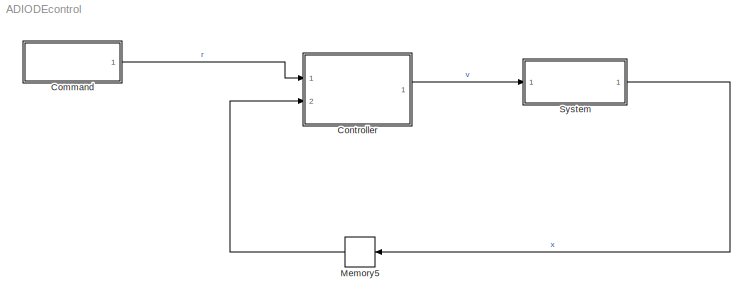
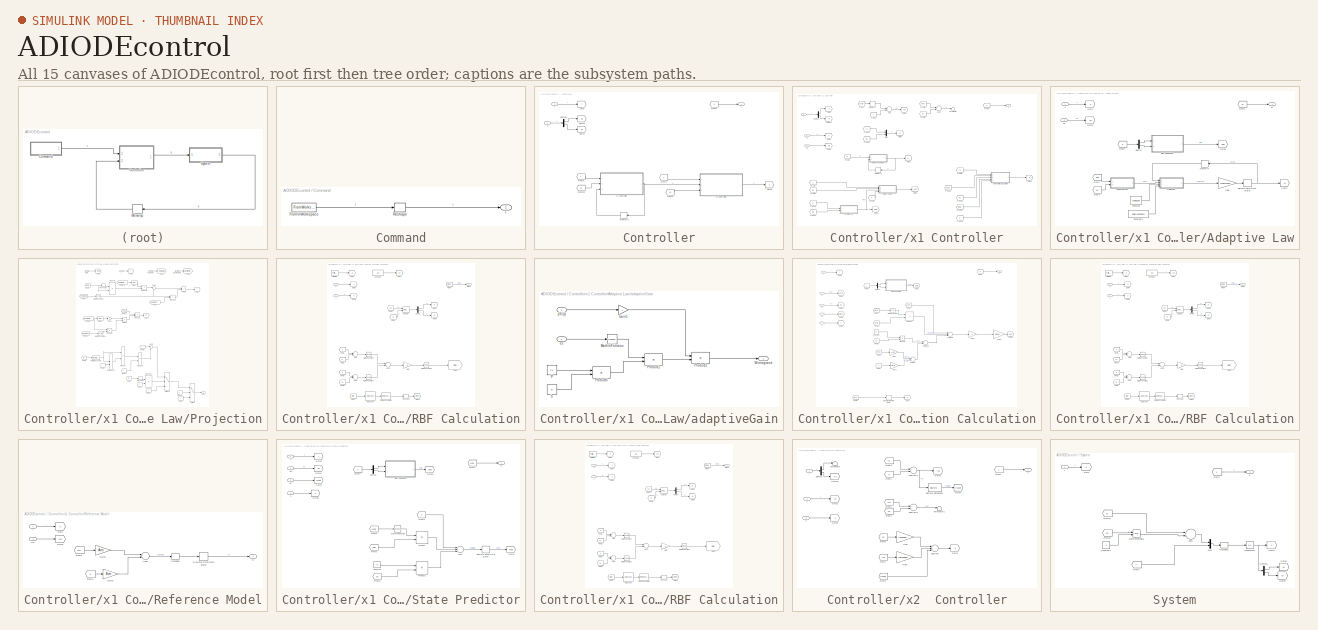
[diagram: thumbnail index - all 15 canvases of the model, root first then tree order]
MODEL ADIODEcontrol
KIND model
CONFIG InitFcn = initADIODEcontrol\n\n\n
CONFIG StopFcn = plotlab
BLOCK [SubSystem] Command
  FunctionWithSeparateData = off
  MaskHideContents = off
  MinAlgLoopOccurrences = off
  Opaque = off
  Ports = [0, 1]
  PropExecContextOutsideSubsystem = off
  RTWSystemCode = Auto
  RequestExecContextInheritance = off
  SystemSampleTime = dtController
  TreatAsAtomicUnit = on
BLOCK [FromWorkspace] Command/From\nWorkspace
  OutputAfterFinalValue = Setting to zero
  VariableName = rData
  ZeroCross = on
BLOCK [Reshape] Command/Reshape
  OutputDimensionality = Column vector (2-D)
  Ports = [1, 1]
BLOCK [Outport] Command/r
  IconDisplay = Port number
BLOCK [SubSystem] Controller
  FunctionWithSeparateData = off
  MaskHideContents = off
  MinAlgLoopOccurrences = off
  Opaque = off
  Ports = [2, 1]
  PropExecContextOutsideSubsystem = off
  RTWSystemCode = Auto
  RequestExecContextInheritance = off
  SystemSampleTime = dtController
  TreatAsAtomicUnit = on
BLOCK [Demux] Controller/Demux1
  DisplayOption = bar
  Outputs = 2
  Ports = [1, 2]
BLOCK [From] Controller/From1
  GotoTag = v
BLOCK [From] Controller/From19
  GotoTag = x1
BLOCK [From] Controller/From2
  GotoTag = r
BLOCK [From] Controller/From3
  GotoTag = x2
BLOCK [From] Controller/From6
  GotoTag = r
BLOCK [Goto] Controller/Goto
  GotoTag = r
  TagVisibility = local
BLOCK [Goto] Controller/Goto1
  GotoTag = x2
  TagVisibility = local
BLOCK [Goto] Controller/Goto10
  GotoTag = x1
  TagVisibility = local
BLOCK [Goto] Controller/Goto2
  GotoTag = v
  TagVisibility = local
BLOCK [Memory] Controller/Memory2
  InheritSampleTime = on
  LinearizeAsDelay = on
  LinearizeMemory = on
  X0 = u0
BLOCK [Inport] Controller/r
  IconDisplay = Port number
  OutDataType = fixdt(1, 16)
  OutScaling = 2^0
BLOCK [Outport] Controller/v
  IconDisplay = Port number
  OutDataType = fixdt(1, 16)
  OutScaling = 2^0
BLOCK [Inport] Controller/x
  IconDisplay = Port number
  OutDataType = fixdt(1, 16)
  OutScaling = 2^0
  Port = 2
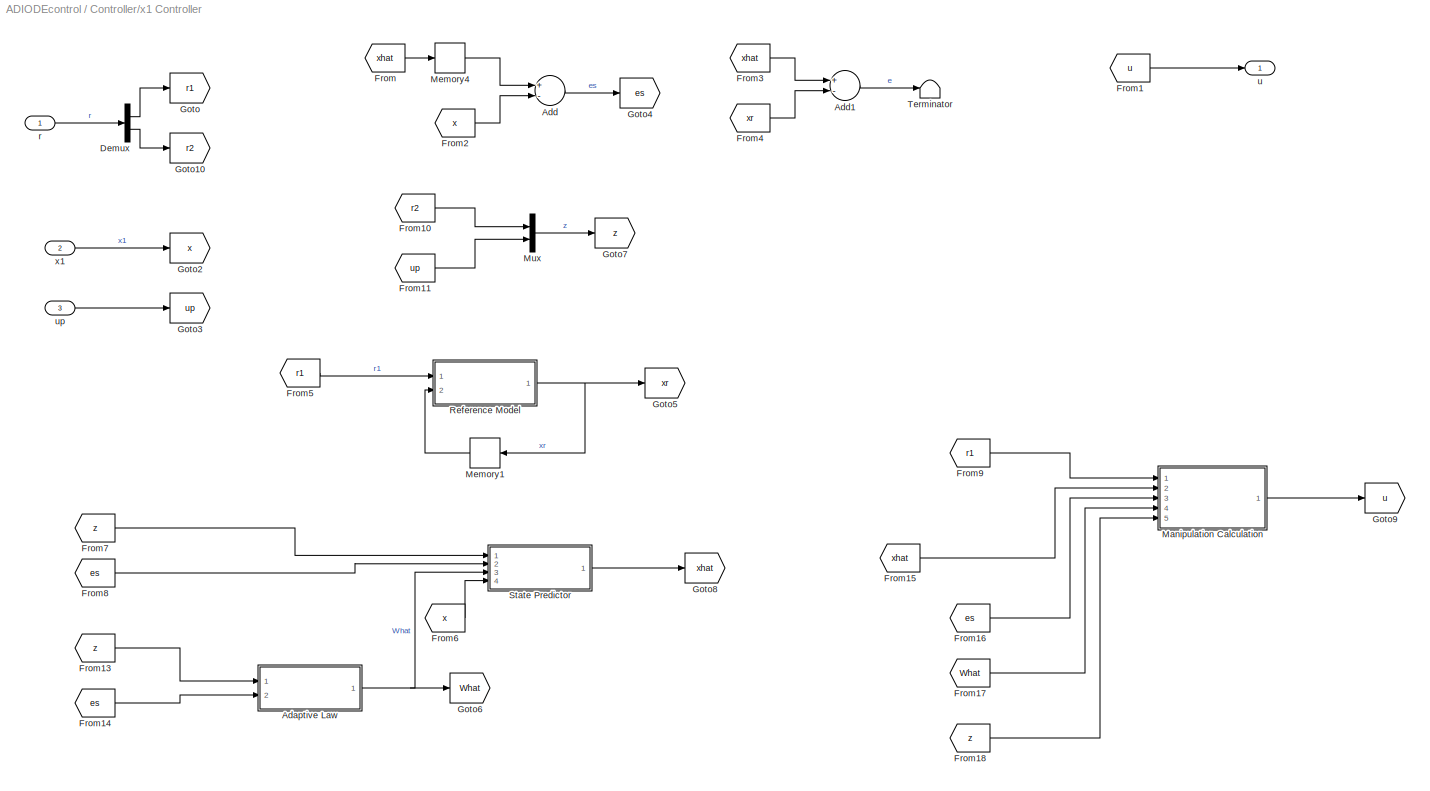
BLOCK [SubSystem] Controller/x1 Controller
  FunctionWithSeparateData = off
  MaskHideContents = off
  MinAlgLoopOccurrences = off
  Opaque = off
  Ports = [3, 1]
  PropExecContextOutsideSubsystem = off
  RTWSystemCode = Auto
  RequestExecContextInheritance = off
  SystemSampleTime = dtController
  TreatAsAtomicUnit = on
BLOCK [SubSystem] Controller/x1 Controller/Adaptive Law
  FunctionWithSeparateData = off
  MaskHideContents = off
  MinAlgLoopOccurrences = off
  Opaque = off
  Ports = [2, 1]
  PropExecContextOutsideSubsystem = off
  RTWSystemCode = Auto
  RequestExecContextInheritance = off
  TreatAsAtomicUnit = on
BLOCK [Constant] Controller/x1 Controller/Adaptive Law/Constant
  OutDataType = fixdt(1, 16)
  OutScaling = 2^0
  Value = Wbound
BLOCK [Constant] Controller/x1 Controller/Adaptive Law/Constant1
  OutDataType = fixdt(1, 16)
  OutScaling = 2^0
  Value = epsilontheta
BLOCK [Demux] Controller/x1 Controller/Adaptive Law/Demux
  DisplayOption = bar
  Outputs = 2
  Ports = [1, 2]
BLOCK [DiscreteIntegrator] Controller/x1 Controller/Adaptive Law/Discrete-Time\nIntegrator
  ExternalReset = none
  ICPrevOutput = DiscIntNeverNeededParam
  ICPrevScaledInput = DiscIntNeverNeededParam
  InitialCondition = W0
  InitialConditionSource = internal
  IntegratorMethod = Integration: Trapezoidal
  LimitOutput = on
  LowerSaturationLimit = -Wbound
  OutDataType = fixdt(1, 16)
  OutScaling = 2^0
  Ports = [1, 1]
  SampleTime = -1
  UpperSaturationLimit = Wbound
BLOCK [From] Controller/x1 Controller/Adaptive Law/From1
  GotoTag = W
BLOCK [From] Controller/x1 Controller/Adaptive Law/From2
  GotoTag = z
BLOCK [From] Controller/x1 Controller/Adaptive Law/From4
  GotoTag = es
BLOCK [From] Controller/x1 Controller/Adaptive Law/From7
  GotoTag = phiz
BLOCK [Gain] Controller/x1 Controller/Adaptive Law/Gain
  Gain = GammaW
  OutDataType = fixdt(1, 16)
  OutDataTypeMode = Inherit via internal rule
  OutDataTypeStr = Inherit: Inherit via internal rule
  OutScaling = 2^0
  ParamDataTypeStr = Inherit: Inherit via internal rule
  ParameterDataType = fixdt(1, 16)
  ParameterDataTypeMode = Inherit via internal rule
  ParameterScaling = 2^0
  SaturateOnIntegerOverflow = off
BLOCK [Goto] Controller/x1 Controller/Adaptive Law/Goto
  GotoTag = z
  TagVisibility = local
BLOCK [Goto] Controller/x1 Controller/Adaptive Law/Goto4
  GotoTag = es
  TagVisibility = local
BLOCK [Goto] Controller/x1 Controller/Adaptive Law/Goto5
  GotoTag = phiz
  TagVisibility = local
BLOCK [Goto] Controller/x1 Controller/Adaptive Law/Goto7
  GotoTag = W
  TagVisibility = local
BLOCK [Memory] Controller/x1 Controller/Adaptive Law/Memory4
  InheritSampleTime = on
  LinearizeAsDelay = on
  LinearizeMemory = on
  X0 = W0
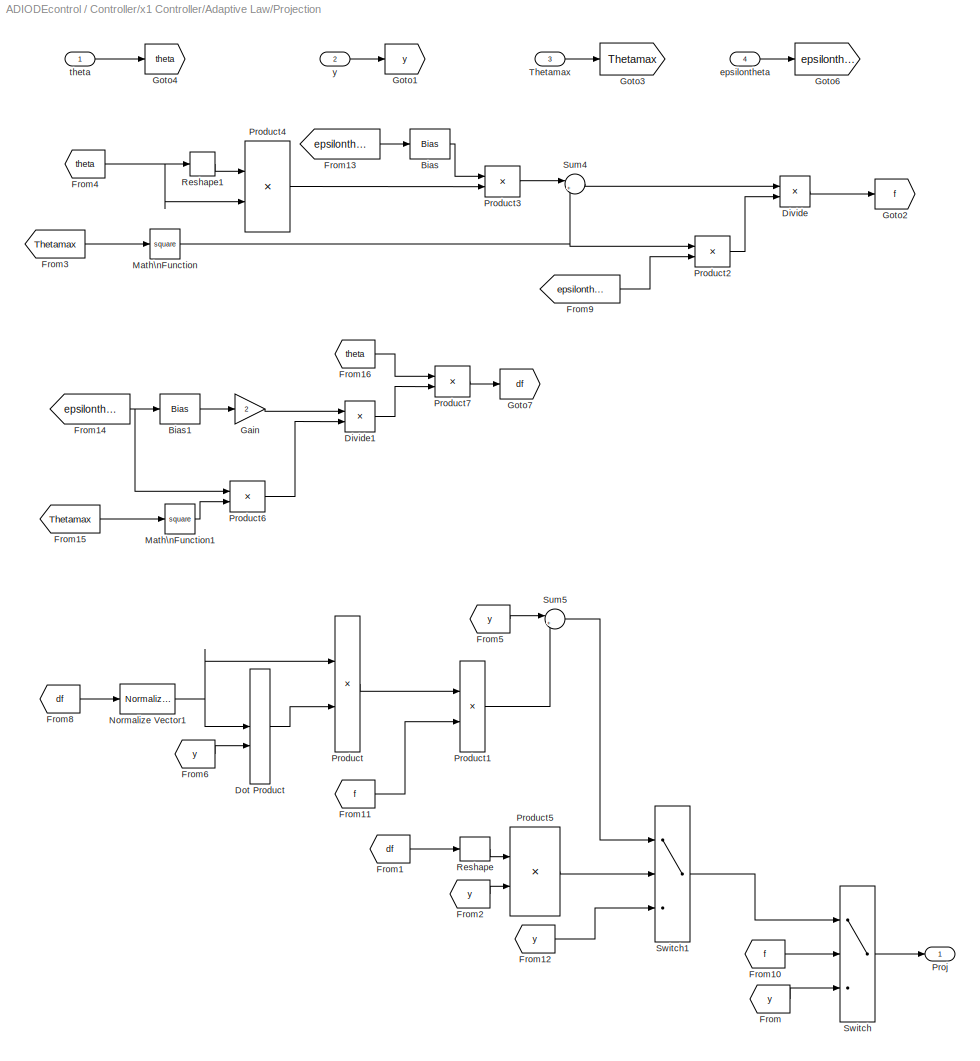
BLOCK [SubSystem] Controller/x1 Controller/Adaptive Law/Projection
  FunctionWithSeparateData = off
  MaskHideContents = off
  MinAlgLoopOccurrences = off
  Opaque = off
  Ports = [4, 1]
  PropExecContextOutsideSubsystem = off
  RTWSystemCode = Auto
  RequestExecContextInheritance = off
  TreatAsAtomicUnit = on
BLOCK [Bias] Controller/x1 Controller/Adaptive Law/Projection/Bias
  Bias = 1
  SaturateOnIntegerOverflow = off
BLOCK [Bias] Controller/x1 Controller/Adaptive Law/Projection/Bias1
  Bias = 1
  SaturateOnIntegerOverflow = off
BLOCK [Product] Controller/x1 Controller/Adaptive Law/Projection/Divide
  InputSameDT = off
  Inputs = */
  OutDataType = fixdt(1, 16)
  OutDataTypeMode = Inherit via internal rule
  OutDataTypeStr = Inherit: Inherit via internal rule
  OutScaling = 2^-10
  Ports = [2, 1]
  RndMeth = Floor
  SaturateOnIntegerOverflow = off
BLOCK [Product] Controller/x1 Controller/Adaptive Law/Projection/Divide1
  InputSameDT = off
  Inputs = */
  OutDataType = fixdt(1, 16)
  OutDataTypeMode = Inherit via internal rule
  OutDataTypeStr = Inherit: Inherit via internal rule
  OutScaling = 2^-10
  Ports = [2, 1]
  RndMeth = Floor
  SaturateOnIntegerOverflow = off
BLOCK [DotProduct] Controller/x1 Controller/Adaptive Law/Projection/Dot Product
  OutDataType = fixdt(1, 16)
  OutDataTypeStr = Inherit: Inherit via internal rule
  OutScaling = 2^-10
  OutputDataTypeScalingMode = Inherit via internal rule
BLOCK [From] Controller/x1 Controller/Adaptive Law/Projection/From
  CloseFcn = tagdialog Close
  GotoTag = y
BLOCK [From] Controller/x1 Controller/Adaptive Law/Projection/From1
  CloseFcn = tagdialog Close
  GotoTag = df
BLOCK [From] Controller/x1 Controller/Adaptive Law/Projection/From10
  CloseFcn = tagdialog Close
  GotoTag = f
BLOCK [From] Controller/x1 Controller/Adaptive Law/Projection/From11
  CloseFcn = tagdialog Close
  GotoTag = f
BLOCK [From] Controller/x1 Controller/Adaptive Law/Projection/From12
  CloseFcn = tagdialog Close
  GotoTag = y
BLOCK [From] Controller/x1 Controller/Adaptive Law/Projection/From13
  CloseFcn = tagdialog Close
  GotoTag = epsilontheta
BLOCK [From] Controller/x1 Controller/Adaptive Law/Projection/From14
  CloseFcn = tagdialog Close
  GotoTag = epsilontheta
BLOCK [From] Controller/x1 Controller/Adaptive Law/Projection/From15
  CloseFcn = tagdialog Close
  GotoTag = Thetamax
BLOCK [From] Controller/x1 Controller/Adaptive Law/Projection/From16
  CloseFcn = tagdialog Close
  GotoTag = theta
BLOCK [From] Controller/x1 Controller/Adaptive Law/Projection/From2
  CloseFcn = tagdialog Close
  GotoTag = y
BLOCK [From] Controller/x1 Controller/Adaptive Law/Projection/From3
  CloseFcn = tagdialog Close
  GotoTag = Thetamax
BLOCK [From] Controller/x1 Controller/Adaptive Law/Projection/From4
  CloseFcn = tagdialog Close
  GotoTag = theta
BLOCK [From] Controller/x1 Controller/Adaptive Law/Projection/From5
  CloseFcn = tagdialog Close
  GotoTag = y
BLOCK [From] Controller/x1 Controller/Adaptive Law/Projection/From6
  CloseFcn = tagdialog Close
  GotoTag = y
BLOCK [From] Controller/x1 Controller/Adaptive Law/Projection/From8
  CloseFcn = tagdialog Close
  GotoTag = df
BLOCK [From] Controller/x1 Controller/Adaptive Law/Projection/From9
  CloseFcn = tagdialog Close
  GotoTag = epsilontheta
BLOCK [Gain] Controller/x1 Controller/Adaptive Law/Projection/Gain
  Gain = 2
  OutDataType = fixdt(1, 16)
  OutDataTypeMode = Inherit via internal rule
  OutDataTypeStr = Inherit: Inherit via internal rule
  OutScaling = 2^0
  ParamDataTypeStr = Inherit: Inherit via internal rule
  ParameterDataType = fixdt(1, 16)
  ParameterDataTypeMode = Inherit via internal rule
  ParameterScaling = 2^0
  SaturateOnIntegerOverflow = off
BLOCK [Goto] Controller/x1 Controller/Adaptive Law/Projection/Goto1
  GotoTag = y
  TagVisibility = local
BLOCK [Goto] Controller/x1 Controller/Adaptive Law/Projection/Goto2
  GotoTag = f
  TagVisibility = local
BLOCK [Goto] Controller/x1 Controller/Adaptive Law/Projection/Goto3
  GotoTag = Thetamax
  TagVisibility = local
BLOCK [Goto] Controller/x1 Controller/Adaptive Law/Projection/Goto4
  GotoTag = theta
  TagVisibility = local
BLOCK [Goto] Controller/x1 Controller/Adaptive Law/Projection/Goto6
  GotoTag = epsilontheta
  TagVisibility = local
BLOCK [Goto] Controller/x1 Controller/Adaptive Law/Projection/Goto7
  GotoTag = df
  TagVisibility = local
BLOCK [Math] Controller/x1 Controller/Adaptive Law/Projection/Math\nFunction
  Operator = square
  OutDataType = fixdt(1, 16)
  OutScaling = 2^0
  Ports = [1, 1]
BLOCK [Math] Controller/x1 Controller/Adaptive Law/Projection/Math\nFunction1
  Operator = square
  OutDataType = fixdt(1, 16)
  OutScaling = 2^0
  Ports = [1, 1]
BLOCK [Reference] Controller/x1 Controller/Adaptive Law/Projection/Normalize Vector1  REF=vrlib/Utilities/Normalize Vector
  FunctionWithSeparateData = off
  Ports = [1, 1]
  RTWMemSecDataConstants = Inherit from model
  RTWMemSecDataInternal = Inherit from model
  RTWMemSecDataParameters = Inherit from model
  RTWMemSecFuncExecute = Inherit from model
  RTWMemSecFuncInitTerm = Inherit from model
  ShowPortLabels = FromPortIcon
  SourceBlock = vrlib/Utilities/Normalize Vector
  SourceType = Normalize Vector
  SystemSampleTime = -1
  maxzero = 0
BLOCK [Product] Controller/x1 Controller/Adaptive Law/Projection/Product
  InputSameDT = off
  OutDataType = fixdt(1, 16)
  OutDataTypeMode = Inherit via internal rule
  OutDataTypeStr = Inherit: Inherit via internal rule
  OutScaling = 2^0
  Ports = [2, 1]
  SaturateOnIntegerOverflow = off
BLOCK [Product] Controller/x1 Controller/Adaptive Law/Projection/Product1
  InputSameDT = off
  OutDataType = fixdt(1, 16)
  OutDataTypeMode = Inherit via internal rule
  OutDataTypeStr = Inherit: Inherit via internal rule
  OutScaling = 2^0
  Ports = [2, 1]
  SaturateOnIntegerOverflow = off
BLOCK [Product] Controller/x1 Controller/Adaptive Law/Projection/Product2
  InputSameDT = off
  OutDataType = fixdt(1, 16)
  OutDataTypeMode = Inherit via internal rule
  OutDataTypeStr = Inherit: Inherit via internal rule
  OutScaling = 2^0
  Ports = [2, 1]
  SaturateOnIntegerOverflow = off
BLOCK [Product] Controller/x1 Controller/Adaptive Law/Projection/Product3
  InputSameDT = off
  OutDataType = fixdt(1, 16)
  OutDataTypeMode = Inherit via internal rule
  OutDataTypeStr = Inherit: Inherit via internal rule
  OutScaling = 2^0
  Ports = [2, 1]
  SaturateOnIntegerOverflow = off
BLOCK [Product] Controller/x1 Controller/Adaptive Law/Projection/Product4
  InputSameDT = off
  Multiplication = Matrix(*)
  OutDataType = sfix(16)
  OutDataTypeMode = Inherit via internal rule
  OutDataTypeStr = Inherit: Inherit via internal rule
  OutScaling = 2^0
  Ports = [2, 1]
  SaturateOnIntegerOverflow = off
BLOCK [Product] Controller/x1 Controller/Adaptive Law/Projection/Product5
  InputSameDT = off
  Multiplication = Matrix(*)
  OutDataType = sfix(16)
  OutDataTypeMode = Inherit via internal rule
  OutDataTypeStr = Inherit: Inherit via internal rule
  OutScaling = 2^0
  Ports = [2, 1]
  SaturateOnIntegerOverflow = off
BLOCK [Product] Controller/x1 Controller/Adaptive Law/Projection/Product6
  InputSameDT = off
  OutDataType = fixdt(1, 16)
  OutDataTypeMode = Inherit via internal rule
  OutDataTypeStr = Inherit: Inherit via internal rule
  OutScaling = 2^0
  Ports = [2, 1]
  SaturateOnIntegerOverflow = off
BLOCK [Product] Controller/x1 Controller/Adaptive Law/Projection/Product7
  InputSameDT = off
  OutDataType = fixdt(1, 16)
  OutDataTypeMode = Inherit via internal rule
  OutDataTypeStr = Inherit: Inherit via internal rule
  OutScaling = 2^0
  Ports = [2, 1]
  SaturateOnIntegerOverflow = off
BLOCK [Outport] Controller/x1 Controller/Adaptive Law/Projection/Proj
  IconDisplay = Port number
  OutDataType = sfix(16)
  OutScaling = 2^0
BLOCK [Reshape] Controller/x1 Controller/Adaptive Law/Projection/Reshape
  OutputDimensionality = Row vector (2-D)
  Ports = [1, 1]
BLOCK [Reshape] Controller/x1 Controller/Adaptive Law/Projection/Reshape1
  OutputDimensionality = Row vector (2-D)
  Ports = [1, 1]
BLOCK [Sum] Controller/x1 Controller/Adaptive Law/Projection/Sum4
  IconShape = round
  InputSameDT = off
  Inputs = |+-
  OutDataType = sfix(16)
  OutDataTypeMode = Inherit via internal rule
  OutDataTypeStr = Inherit: Inherit via internal rule
  OutScaling = 2^0
  Ports = [2, 1]
  SaturateOnIntegerOverflow = off
BLOCK [Sum] Controller/x1 Controller/Adaptive Law/Projection/Sum5
  IconShape = round
  InputSameDT = off
  Inputs = |+-
  OutDataType = sfix(16)
  OutDataTypeMode = Inherit via internal rule
  OutDataTypeStr = Inherit: Inherit via internal rule
  OutScaling = 2^0
  Ports = [2, 1]
  SaturateOnIntegerOverflow = off
BLOCK [Switch] Controller/x1 Controller/Adaptive Law/Projection/Switch
  Criteria = u2 > Threshold
  InputSameDT = off
  OutDataType = sfix(16)
  OutScaling = 2^0
  SaturateOnIntegerOverflow = off
BLOCK [Switch] Controller/x1 Controller/Adaptive Law/Projection/Switch1
  Criteria = u2 > Threshold
  InputSameDT = off
  OutDataType = sfix(16)
  OutScaling = 2^0
  SaturateOnIntegerOverflow = off
BLOCK [Inport] Controller/x1 Controller/Adaptive Law/Projection/Thetamax
  IconDisplay = Port number
  OutDataType = sfix(16)
  OutScaling = 2^0
  Port = 3
BLOCK [Inport] Controller/x1 Controller/Adaptive Law/Projection/epsilontheta
  IconDisplay = Port number
  OutDataType = sfix(16)
  OutScaling = 2^0
  Port = 4
BLOCK [Inport] Controller/x1 Controller/Adaptive Law/Projection/theta
  IconDisplay = Port number
  OutDataType = sfix(16)
  OutScaling = 2^0
BLOCK [Inport] Controller/x1 Controller/Adaptive Law/Projection/y
  IconDisplay = Port number
  OutDataType = sfix(16)
  OutScaling = 2^0
  Port = 2
BLOCK [SubSystem] Controller/x1 Controller/Adaptive Law/RBF Calculation
  FunctionWithSeparateData = off
  MaskHideContents = off
  MinAlgLoopOccurrences = off
  Opaque = off
  Ports = [2, 1]
  PropExecContextOutsideSubsystem = off
  RTWSystemCode = Auto
  RequestExecContextInheritance = off
  TreatAsAtomicUnit = on
BLOCK [Sum] Controller/x1 Controller/Adaptive Law/RBF Calculation/Add
  InputSameDT = off
  Inputs = +-
  OutDataType = fixdt(1, 16)
  OutDataTypeMode = Inherit via internal rule
  OutDataTypeStr = Inherit: Inherit via internal rule
  OutScaling = 2^-10
  Ports = [2, 1]
  SaturateOnIntegerOverflow = off
BLOCK [Sum] Controller/x1 Controller/Adaptive Law/RBF Calculation/Add1
  InputSameDT = off
  Inputs = +-
  OutDataType = fixdt(1, 16)
  OutDataTypeMode = Inherit via internal rule
  OutDataTypeStr = Inherit: Inherit via internal rule
  OutScaling = 2^-10
  Ports = [2, 1]
  SaturateOnIntegerOverflow = off
BLOCK [Sum] Controller/x1 Controller/Adaptive Law/RBF Calculation/Add2
  InputSameDT = off
  OutDataType = fixdt(1, 16)
  OutDataTypeMode = Inherit via internal rule
  OutDataTypeStr = Inherit: Inherit via internal rule
  OutScaling = 2^-10
  Ports = [2, 1]
  SaturateOnIntegerOverflow = off
BLOCK [Constant] Controller/x1 Controller/Adaptive Law/RBF Calculation/Constant
  OutDataType = fixdt(1, 16)
  OutScaling = 2^0
  Value = xu
  VectorParams1D = off
BLOCK [Reference] Controller/x1 Controller/Adaptive Law/RBF Calculation/Delay Line  REF=dspbuff3/Delay Line
  Ports = [1, 1]
  SourceBlock = dspbuff3/Delay Line
  SourceType = Delay Line
  directfeed = on
  enable_output = off
  hold_output = off
  ic = zeros(nofbasis,1)
  siz = nofbasis
BLOCK [Demux] Controller/x1 Controller/Adaptive Law/RBF Calculation/Demux
  DisplayOption = bar
  Outputs = 2
  Ports = [1, 2]
BLOCK [ForIterator] Controller/x1 Controller/Adaptive Law/RBF Calculation/For Iterator
  IterationLimit = nofbasis
  Ports = [0, 1]
BLOCK [FrameConversion] Controller/x1 Controller/Adaptive Law/RBF Calculation/Frame Conversion
  OutFrame = Sample-based
  Ports = [1, 1]
BLOCK [From] Controller/x1 Controller/Adaptive Law/RBF Calculation/From1
  GotoTag = x
BLOCK [From] Controller/x1 Controller/Adaptive Law/RBF Calculation/From2
  GotoTag = xi
BLOCK [From] Controller/x1 Controller/Adaptive Law/RBF Calculation/From3
  GotoTag = u
BLOCK [From] Controller/x1 Controller/Adaptive Law/RBF Calculation/From4
  GotoTag = xu
BLOCK [From] Controller/x1 Controller/Adaptive Law/RBF Calculation/From5
  GotoTag = RBF
BLOCK [From] Controller/x1 Controller/Adaptive Law/RBF Calculation/From6
  GotoTag = ui
BLOCK [From] Controller/x1 Controller/Adaptive Law/RBF Calculation/From7
  GotoTag = RBFs
BLOCK [From] Controller/x1 Controller/Adaptive Law/RBF Calculation/From8
  GotoTag = N
BLOCK [Gain] Controller/x1 Controller/Adaptive Law/RBF Calculation/Gain
  Gain = -1
  OutDataType = fixdt(1, 16)
  OutDataTypeMode = Inherit via internal rule
  OutDataTypeStr = Inherit: Inherit via internal rule
  OutScaling = 2^0
  ParamDataTypeStr = Inherit: Inherit via internal rule
  ParameterDataType = fixdt(1, 16)
  ParameterDataTypeMode = Inherit via internal rule
  ParameterScaling = 2^0
  SaturateOnIntegerOverflow = off
BLOCK [Goto] Controller/x1 Controller/Adaptive Law/RBF Calculation/Goto1
  GotoTag = N
  TagVisibility = local
BLOCK [Goto] Controller/x1 Controller/Adaptive Law/RBF Calculation/Goto2
  GotoTag = RBF
  TagVisibility = local
BLOCK [Goto] Controller/x1 Controller/Adaptive Law/RBF Calculation/Goto3
  GotoTag = RBFs
  TagVisibility = local
BLOCK [Goto] Controller/x1 Controller/Adaptive Law/RBF Calculation/Goto4
  GotoTag = x
  TagVisibility = local
BLOCK [Goto] Controller/x1 Controller/Adaptive Law/RBF Calculation/Goto5
  GotoTag = u
  TagVisibility = local
BLOCK [Goto] Controller/x1 Controller/Adaptive Law/RBF Calculation/Goto6
  GotoTag = xi
  TagVisibility = local
BLOCK [Goto] Controller/x1 Controller/Adaptive Law/RBF Calculation/Goto7
  GotoTag = xu
  TagVisibility = local
BLOCK [Goto] Controller/x1 Controller/Adaptive Law/RBF Calculation/Goto9
  GotoTag = ui
  TagVisibility = local
BLOCK [Math] Controller/x1 Controller/Adaptive Law/RBF Calculation/Math\nFunction
  Operator = square
  OutDataType = fixdt(1, 16)
  OutScaling = 2^0
  Ports = [1, 1]
BLOCK [Math] Controller/x1 Controller/Adaptive Law/RBF Calculation/Math\nFunction1
  Operator = square
  OutDataType = fixdt(1, 16)
  OutScaling = 2^0
  Ports = [1, 1]
BLOCK [Math] Controller/x1 Controller/Adaptive Law/RBF Calculation/Math\nFunction2
  OutDataType = fixdt(1, 16)
  OutScaling = 2^0
  Ports = [1, 1]
BLOCK [Outport] Controller/x1 Controller/Adaptive Law/RBF Calculation/RBFs
  IconDisplay = Port number
  OutDataType = fixdt(1, 16)
  OutScaling = 2^0
BLOCK [Reshape] Controller/x1 Controller/Adaptive Law/RBF Calculation/Reshape
  OutputDimensionality = Column vector (2-D)
  Ports = [1, 1]
BLOCK [Selector] Controller/x1 Controller/Adaptive Law/RBF Calculation/Selector
  IndexOptions = Index vector (port),Select all
  Indices = [1 3],1
  NumberOfDimensions = 2
  OutputSizes = 1,1
  Ports = [2, 1]
BLOCK [Inport] Controller/x1 Controller/Adaptive Law/RBF Calculation/u
  IconDisplay = Port number
  OutDataType = fixdt(1, 16)
  OutScaling = 2^0
  Port = 2
BLOCK [Inport] Controller/x1 Controller/Adaptive Law/RBF Calculation/x
  IconDisplay = Port number
  OutDataType = fixdt(1, 16)
  OutScaling = 2^0
BLOCK [Outport] Controller/x1 Controller/Adaptive Law/W^
  IconDisplay = Port number
  OutDataType = fixdt(1, 16)
  OutScaling = 2^0
BLOCK [SubSystem] Controller/x1 Controller/Adaptive Law/adaptiveGain
  FunctionWithSeparateData = off
  MaskHideContents = off
  MinAlgLoopOccurrences = off
  Opaque = off
  Ports = [2, 1]
  PropExecContextOutsideSubsystem = off
  RTWSystemCode = Auto
  RequestExecContextInheritance = off
  TreatAsAtomicUnit = on
BLOCK [Gain] Controller/x1 Controller/Adaptive Law/adaptiveGain/Gain1
  Gain = -1
  OutDataType = fixdt(1, 16)
  OutDataTypeMode = Inherit via internal rule
  OutDataTypeStr = Inherit: Inherit via internal rule
  OutScaling = 2^0
  ParamDataTypeStr = Inherit: Inherit via internal rule
  ParameterDataType = fixdt(1, 16)
  ParameterDataTypeMode = Inherit via internal rule
  ParameterScaling = 2^0
  SaturateOnIntegerOverflow = off
BLOCK [Math] Controller/x1 Controller/Adaptive Law/adaptiveGain/Math\nFunction
  Operator = transpose
  OutDataType = sfix(16)
  OutScaling = 2^0
  Ports = [1, 1]
BLOCK [Constant] Controller/x1 Controller/Adaptive Law/adaptiveGain/P
  OutDataType = fixdt(1, 16)
  OutScaling = 2^0
  Value = Ps
  VectorParams1D = off
BLOCK [Product] Controller/x1 Controller/Adaptive Law/adaptiveGain/Product1
  InputSameDT = off
  Multiplication = Matrix(*)
  OutDataType = fixdt(1, 16)
  OutDataTypeMode = Inherit via internal rule
  OutDataTypeStr = Inherit: Inherit via internal rule
  OutScaling = 2^0
  Ports = [2, 1]
  SaturateOnIntegerOverflow = off
BLOCK [Product] Controller/x1 Controller/Adaptive Law/adaptiveGain/Product3
  InputSameDT = off
  Multiplication = Matrix(*)
  OutDataType = fixdt(1, 16)
  OutDataTypeMode = Inherit via internal rule
  OutDataTypeStr = Inherit: Inherit via internal rule
  OutScaling = 2^0
  Ports = [2, 1]
  SaturateOnIntegerOverflow = off
BLOCK [Product] Controller/x1 Controller/Adaptive Law/adaptiveGain/Product5
  InputSameDT = off
  Multiplication = Matrix(*)
  OutDataType = fixdt(1, 16)
  OutDataTypeMode = Inherit via internal rule
  OutDataTypeStr = Inherit: Inherit via internal rule
  OutScaling = 2^0
  Ports = [2, 1]
  SaturateOnIntegerOverflow = off
BLOCK [Outport] Controller/x1 Controller/Adaptive Law/adaptiveGain/Wintegrand
  IconDisplay = Port number
  OutDataType = fixdt(1, 16)
  OutScaling = 2^0
BLOCK [Constant] Controller/x1 Controller/Adaptive Law/adaptiveGain/b
  OutDataType = fixdt(1, 16)
  OutScaling = 2^0
  Value = B
  VectorParams1D = off
BLOCK [Inport] Controller/x1 Controller/Adaptive Law/adaptiveGain/es
  IconDisplay = Port number
  OutDataType = fixdt(1, 16)
  OutScaling = 2^0
  Port = 2
BLOCK [Inport] Controller/x1 Controller/Adaptive Law/adaptiveGain/phi(z)
  IconDisplay = Port number
  OutDataType = fixdt(1, 16)
  OutScaling = 2^0
BLOCK [Inport] Controller/x1 Controller/Adaptive Law/es
  IconDisplay = Port number
  OutDataType = fixdt(1, 16)
  OutScaling = 2^0
  Port = 2
BLOCK [Inport] Controller/x1 Controller/Adaptive Law/z
  IconDisplay = Port number
  OutDataType = fixdt(1, 16)
  OutScaling = 2^0
BLOCK [Sum] Controller/x1 Controller/Add
  InputSameDT = off
  Inputs = +-
  OutDataType = fixdt(1, 16)
  OutDataTypeMode = Inherit via internal rule
  OutDataTypeStr = Inherit: Inherit via internal rule
  OutScaling = 2^-10
  Ports = [2, 1]
  SaturateOnIntegerOverflow = off
BLOCK [Sum] Controller/x1 Controller/Add1
  InputSameDT = off
  Inputs = +-
  OutDataType = fixdt(1, 16)
  OutDataTypeMode = Inherit via internal rule
  OutDataTypeStr = Inherit: Inherit via internal rule
  OutScaling = 2^-10
  Ports = [2, 1]
  SaturateOnIntegerOverflow = off
BLOCK [Demux] Controller/x1 Controller/Demux
  DisplayOption = bar
  Outputs = 2
  Ports = [1, 2]
BLOCK [From] Controller/x1 Controller/From
  GotoTag = xhat
BLOCK [From] Controller/x1 Controller/From1
  GotoTag = u
BLOCK [From] Controller/x1 Controller/From10
  GotoTag = r2
BLOCK [From] Controller/x1 Controller/From11
  GotoTag = up
BLOCK [From] Controller/x1 Controller/From13
  GotoTag = z
BLOCK [From] Controller/x1 Controller/From14
  GotoTag = es
BLOCK [From] Controller/x1 Controller/From15
  GotoTag = xhat
BLOCK [From] Controller/x1 Controller/From16
  GotoTag = es
BLOCK [From] Controller/x1 Controller/From17
  GotoTag = What
BLOCK [From] Controller/x1 Controller/From18
  GotoTag = z
BLOCK [From] Controller/x1 Controller/From2
  GotoTag = x
BLOCK [From] Controller/x1 Controller/From3
  GotoTag = xhat
BLOCK [From] Controller/x1 Controller/From4
  GotoTag = xr
BLOCK [From] Controller/x1 Controller/From5
  GotoTag = r1
BLOCK [From] Controller/x1 Controller/From6
  GotoTag = x
BLOCK [From] Controller/x1 Controller/From7
  GotoTag = z
BLOCK [From] Controller/x1 Controller/From8
  GotoTag = es
BLOCK [From] Controller/x1 Controller/From9
  GotoTag = r1
BLOCK [Goto] Controller/x1 Controller/Goto
  GotoTag = r1
  TagVisibility = local
BLOCK [Goto] Controller/x1 Controller/Goto10
  GotoTag = r2
  TagVisibility = local
BLOCK [Goto] Controller/x1 Controller/Goto2
  GotoTag = x
  TagVisibility = local
BLOCK [Goto] Controller/x1 Controller/Goto3
  GotoTag = up
  TagVisibility = local
BLOCK [Goto] Controller/x1 Controller/Goto4
  GotoTag = es
  TagVisibility = local
BLOCK [Goto] Controller/x1 Controller/Goto5
  GotoTag = xr
  TagVisibility = local
BLOCK [Goto] Controller/x1 Controller/Goto6
  GotoTag = What
  TagVisibility = local
BLOCK [Goto] Controller/x1 Controller/Goto7
  GotoTag = z
  TagVisibility = local
BLOCK [Goto] Controller/x1 Controller/Goto8
  GotoTag = xhat
  TagVisibility = local
BLOCK [Goto] Controller/x1 Controller/Goto9
  GotoTag = u
  TagVisibility = local
BLOCK [SubSystem] Controller/x1 Controller/Manipulation Calculation
  FunctionWithSeparateData = off
  MaskHideContents = off
  MinAlgLoopOccurrences = off
  Opaque = off
  Ports = [5, 1]
  PropExecContextOutsideSubsystem = off
  RTWSystemCode = Auto
  RequestExecContextInheritance = off
  TreatAsAtomicUnit = on
BLOCK [Constant] Controller/x1 Controller/Manipulation Calculation/Constant
  OutDataType = fixdt(1, 16)
  OutScaling = 2^0
  Value = As
BLOCK [Demux] Controller/x1 Controller/Manipulation Calculation/Demux
  DisplayOption = bar
  Outputs = 2
  Ports = [1, 2]
BLOCK [DiscreteIntegrator] Controller/x1 Controller/Manipulation Calculation/Discrete-Time\nIntegrator
  ExternalReset = none
  ICPrevOutput = DiscIntNeverNeededParam
  ICPrevScaledInput = DiscIntNeverNeededParam
  InitialCondition = u0
  InitialConditionMode = State only (most efficient)
  InitialConditionSource = internal
  IntegratorMethod = Integration: Backward Euler
  LowerSaturationLimit = Intmin
  OutDataType = fixdt(1, 16)
  OutScaling = 2^0
  Ports = [1, 1]
  SampleTime = -1
  UpperSaturationLimit = Intmax
BLOCK [From] Controller/x1 Controller/Manipulation Calculation/From1
  GotoTag = u
BLOCK [From] Controller/x1 Controller/Manipulation Calculation/From2
  GotoTag = What
BLOCK [From] Controller/x1 Controller/Manipulation Calculation/From3
  GotoTag = phiz
BLOCK [From] Controller/x1 Controller/Manipulation Calculation/From4
  GotoTag = z
BLOCK [From] Controller/x1 Controller/Manipulation Calculation/From5
  GotoTag = es
BLOCK [From] Controller/x1 Controller/Manipulation Calculation/From6
  GotoTag = xhat
BLOCK [From] Controller/x1 Controller/Manipulation Calculation/From7
  GotoTag = r
BLOCK [From] Controller/x1 Controller/Manipulation Calculation/From8
  GotoTag = xhat
BLOCK [From] Controller/x1 Controller/Manipulation Calculation/From9
  GotoTag = udot
BLOCK [Gain] Controller/x1 Controller/Manipulation Calculation/Gain
  Gain = Arm
  OutDataType = fixdt(1, 16)
  OutDataTypeMode = Inherit via internal rule
  OutDataTypeStr = Inherit: Inherit via internal rule
  OutScaling = 2^0
  ParamDataTypeStr = Inherit: Inherit via internal rule
  ParameterDataType = fixdt(1, 16)
  ParameterDataTypeMode = Inherit via internal rule
  ParameterScaling = 2^0
  SaturateOnIntegerOverflow = off
BLOCK [Gain] Controller/x1 Controller/Manipulation Calculation/Gain1
  Gain = Brm
  OutDataType = fixdt(1, 16)
  OutDataTypeMode = Inherit via internal rule
  OutDataTypeStr = Inherit: Inherit via internal rule
  OutScaling = 2^0
  ParamDataTypeStr = Inherit: Inherit via internal rule
  ParameterDataType = fixdt(1, 16)
  ParameterDataTypeMode = Inherit via internal rule
  ParameterScaling = 2^0
  SaturateOnIntegerOverflow = off
BLOCK [Gain] Controller/x1 Controller/Manipulation Calculation/Gain3
  Gain = 1/epsilon
  OutDataType = fixdt(1, 16)
  OutDataTypeMode = Inherit via internal rule
  OutDataTypeStr = Inherit: Inherit via internal rule
  OutScaling = 2^0
  ParamDataTypeStr = Inherit: Inherit via internal rule
  ParameterDataType = fixdt(1, 16)
  ParameterDataTypeMode = Inherit via internal rule
  ParameterScaling = 2^0
  SaturateOnIntegerOverflow = off
BLOCK [Gain] Controller/x1 Controller/Manipulation Calculation/Gain4
  Gain = -1
  OutDataType = fixdt(1, 16)
  OutDataTypeMode = Inherit via internal rule
  OutDataTypeStr = Inherit: Inherit via internal rule
  OutScaling = 2^0
  ParamDataTypeStr = Inherit: Inherit via internal rule
  ParameterDataType = fixdt(1, 16)
  ParameterDataTypeMode = Inherit via internal rule
  ParameterScaling = 2^0
  SaturateOnIntegerOverflow = off
BLOCK [Goto] Controller/x1 Controller/Manipulation Calculation/Goto
  GotoTag = r
  TagVisibility = local
BLOCK [Goto] Controller/x1 Controller/Manipulation Calculation/Goto2
  GotoTag = es
  TagVisibility = local
BLOCK [Goto] Controller/x1 Controller/Manipulation Calculation/Goto3
  GotoTag = What
  TagVisibility = local
BLOCK [Goto] Controller/x1 Controller/Manipulation Calculation/Goto4
  GotoTag = xhat
  TagVisibility = local
BLOCK [Goto] Controller/x1 Controller/Manipulation Calculation/Goto5
  GotoTag = phiz
  TagVisibility = local
BLOCK [Goto] Controller/x1 Controller/Manipulation Calculation/Goto6
  GotoTag = udot
  TagVisibility = local
BLOCK [Goto] Controller/x1 Controller/Manipulation Calculation/Goto7
  GotoTag = u
  TagVisibility = local
BLOCK [Goto] Controller/x1 Controller/Manipulation Calculation/Goto8
  GotoTag = z
  TagVisibility = local
BLOCK [Math] Controller/x1 Controller/Manipulation Calculation/Math\nFunction
  Operator = transpose
  OutDataType = fixdt(1, 16)
  OutScaling = 2^0
  Ports = [1, 1]
BLOCK [Product] Controller/x1 Controller/Manipulation Calculation/Product
  InputSameDT = off
  Multiplication = Matrix(*)
  OutDataType = fixdt(1, 16)
  OutDataTypeMode = Inherit via internal rule
  OutDataTypeStr = Inherit: Inherit via internal rule
  OutScaling = 2^0
  Ports = [2, 1]
  SaturateOnIntegerOverflow = off
BLOCK [Product] Controller/x1 Controller/Manipulation Calculation/Product1
  InputSameDT = off
  OutDataType = fixdt(1, 16)
  OutDataTypeMode = Inherit via internal rule
  OutDataTypeStr = Inherit: Inherit via internal rule
  OutScaling = 2^0
  Ports = [2, 1]
  SaturateOnIntegerOverflow = off
BLOCK [SubSystem] Controller/x1 Controller/Manipulation Calculation/RBF Calculation
  FunctionWithSeparateData = off
  MaskHideContents = off
  MinAlgLoopOccurrences = off
  Opaque = off
  Ports = [2, 1]
  PropExecContextOutsideSubsystem = off
  RTWSystemCode = Auto
  RequestExecContextInheritance = off
  TreatAsAtomicUnit = on
BLOCK [Sum] Controller/x1 Controller/Manipulation Calculation/RBF Calculation/Add
  InputSameDT = off
  Inputs = +-
  OutDataType = fixdt(1, 16)
  OutDataTypeMode = Inherit via internal rule
  OutDataTypeStr = Inherit: Inherit via internal rule
  OutScaling = 2^-10
  Ports = [2, 1]
  SaturateOnIntegerOverflow = off
BLOCK [Sum] Controller/x1 Controller/Manipulation Calculation/RBF Calculation/Add1
  InputSameDT = off
  Inputs = +-
  OutDataType = fixdt(1, 16)
  OutDataTypeMode = Inherit via internal rule
  OutDataTypeStr = Inherit: Inherit via internal rule
  OutScaling = 2^-10
  Ports = [2, 1]
  SaturateOnIntegerOverflow = off
BLOCK [Sum] Controller/x1 Controller/Manipulation Calculation/RBF Calculation/Add2
  InputSameDT = off
  OutDataType = fixdt(1, 16)
  OutDataTypeMode = Inherit via internal rule
  OutDataTypeStr = Inherit: Inherit via internal rule
  OutScaling = 2^-10
  Ports = [2, 1]
  SaturateOnIntegerOverflow = off
BLOCK [Constant] Controller/x1 Controller/Manipulation Calculation/RBF Calculation/Constant
  OutDataType = fixdt(1, 16)
  OutScaling = 2^0
  Value = xu
  VectorParams1D = off
BLOCK [Reference] Controller/x1 Controller/Manipulation Calculation/RBF Calculation/Delay Line  REF=dspbuff3/Delay Line
  Ports = [1, 1]
  SourceBlock = dspbuff3/Delay Line
  SourceType = Delay Line
  directfeed = on
  enable_output = off
  hold_output = off
  ic = zeros(nofbasis,1)
  siz = nofbasis
BLOCK [Demux] Controller/x1 Controller/Manipulation Calculation/RBF Calculation/Demux
  DisplayOption = bar
  Outputs = 2
  Ports = [1, 2]
BLOCK [ForIterator] Controller/x1 Controller/Manipulation Calculation/RBF Calculation/For Iterator
  IterationLimit = nofbasis
  Ports = [0, 1]
BLOCK [FrameConversion] Controller/x1 Controller/Manipulation Calculation/RBF Calculation/Frame Conversion
  OutFrame = Sample-based
  Ports = [1, 1]
BLOCK [From] Controller/x1 Controller/Manipulation Calculation/RBF Calculation/From1
  GotoTag = x
BLOCK [From] Controller/x1 Controller/Manipulation Calculation/RBF Calculation/From2
  GotoTag = xi
BLOCK [From] Controller/x1 Controller/Manipulation Calculation/RBF Calculation/From3
  GotoTag = u
BLOCK [From] Controller/x1 Controller/Manipulation Calculation/RBF Calculation/From4
  GotoTag = xu
BLOCK [From] Controller/x1 Controller/Manipulation Calculation/RBF Calculation/From5
  GotoTag = RBF
BLOCK [From] Controller/x1 Controller/Manipulation Calculation/RBF Calculation/From6
  GotoTag = ui
BLOCK [From] Controller/x1 Controller/Manipulation Calculation/RBF Calculation/From7
  GotoTag = RBFs
BLOCK [From] Controller/x1 Controller/Manipulation Calculation/RBF Calculation/From8
  GotoTag = N
BLOCK [Gain] Controller/x1 Controller/Manipulation Calculation/RBF Calculation/Gain
  Gain = -1
  OutDataType = fixdt(1, 16)
  OutDataTypeMode = Inherit via internal rule
  OutDataTypeStr = Inherit: Inherit via internal rule
  OutScaling = 2^0
  ParamDataTypeStr = Inherit: Inherit via internal rule
  ParameterDataType = fixdt(1, 16)
  ParameterDataTypeMode = Inherit via internal rule
  ParameterScaling = 2^0
  SaturateOnIntegerOverflow = off
BLOCK [Goto] Controller/x1 Controller/Manipulation Calculation/RBF Calculation/Goto1
  GotoTag = N
  TagVisibility = local
BLOCK [Goto] Controller/x1 Controller/Manipulation Calculation/RBF Calculation/Goto2
  GotoTag = RBF
  TagVisibility = local
BLOCK [Goto] Controller/x1 Controller/Manipulation Calculation/RBF Calculation/Goto3
  GotoTag = RBFs
  TagVisibility = local
BLOCK [Goto] Controller/x1 Controller/Manipulation Calculation/RBF Calculation/Goto4
  GotoTag = x
  TagVisibility = local
BLOCK [Goto] Controller/x1 Controller/Manipulation Calculation/RBF Calculation/Goto5
  GotoTag = u
  TagVisibility = local
BLOCK [Goto] Controller/x1 Controller/Manipulation Calculation/RBF Calculation/Goto6
  GotoTag = xi
  TagVisibility = local
BLOCK [Goto] Controller/x1 Controller/Manipulation Calculation/RBF Calculation/Goto7
  GotoTag = xu
  TagVisibility = local
BLOCK [Goto] Controller/x1 Controller/Manipulation Calculation/RBF Calculation/Goto9
  GotoTag = ui
  TagVisibility = local
BLOCK [Math] Controller/x1 Controller/Manipulation Calculation/RBF Calculation/Math\nFunction
  Operator = square
  OutDataType = fixdt(1, 16)
  OutScaling = 2^0
  Ports = [1, 1]
BLOCK [Math] Controller/x1 Controller/Manipulation Calculation/RBF Calculation/Math\nFunction1
  Operator = square
  OutDataType = fixdt(1, 16)
  OutScaling = 2^0
  Ports = [1, 1]
BLOCK [Math] Controller/x1 Controller/Manipulation Calculation/RBF Calculation/Math\nFunction2
  OutDataType = fixdt(1, 16)
  OutScaling = 2^0
  Ports = [1, 1]
BLOCK [Outport] Controller/x1 Controller/Manipulation Calculation/RBF Calculation/RBFs
  IconDisplay = Port number
  OutDataType = fixdt(1, 16)
  OutScaling = 2^0
BLOCK [Reshape] Controller/x1 Controller/Manipulation Calculation/RBF Calculation/Reshape
  OutputDimensionality = Column vector (2-D)
  Ports = [1, 1]
BLOCK [Selector] Controller/x1 Controller/Manipulation Calculation/RBF Calculation/Selector
  IndexOptions = Index vector (port),Select all
  Indices = [1 3],1
  NumberOfDimensions = 2
  OutputSizes = 1,1
  Ports = [2, 1]
BLOCK [Inport] Controller/x1 Controller/Manipulation Calculation/RBF Calculation/u
  IconDisplay = Port number
  OutDataType = fixdt(1, 16)
  OutScaling = 2^0
  Port = 2
BLOCK [Inport] Controller/x1 Controller/Manipulation Calculation/RBF Calculation/x
  IconDisplay = Port number
  OutDataType = fixdt(1, 16)
  OutScaling = 2^0
BLOCK [Sum] Controller/x1 Controller/Manipulation Calculation/Subtract
  InputSameDT = off
  OutDataType = fixdt(1, 16)
  OutDataTypeMode = Inherit via internal rule
  OutDataTypeStr = Inherit: Inherit via internal rule
  OutScaling = 2^-10
  Ports = [2, 1]
  SaturateOnIntegerOverflow = off
BLOCK [Sum] Controller/x1 Controller/Manipulation Calculation/Subtract1
  InputSameDT = off
  Inputs = +-
  OutDataType = fixdt(1, 16)
  OutDataTypeMode = Inherit via internal rule
  OutDataTypeStr = Inherit: Inherit via internal rule
  OutScaling = 2^-10
  Ports = [2, 1]
  SaturateOnIntegerOverflow = off
BLOCK [Sum] Controller/x1 Controller/Manipulation Calculation/Subtract2
  InputSameDT = off
  Inputs = -++
  OutDataType = fixdt(1, 16)
  OutDataTypeMode = Inherit via internal rule
  OutDataTypeStr = Inherit: Inherit via internal rule
  OutScaling = 2^-10
  Ports = [3, 1]
  SaturateOnIntegerOverflow = off
BLOCK [Inport] Controller/x1 Controller/Manipulation Calculation/W^
  IconDisplay = Port number
  OutDataType = fixdt(1, 16)
  OutScaling = 2^0
  Port = 4
BLOCK [Inport] Controller/x1 Controller/Manipulation Calculation/es
  IconDisplay = Port number
  OutDataType = fixdt(1, 16)
  OutScaling = 2^0
  Port = 3
BLOCK [Inport] Controller/x1 Controller/Manipulation Calculation/r
  IconDisplay = Port number
  OutDataType = fixdt(1, 16)
  OutScaling = 2^0
BLOCK [Outport] Controller/x1 Controller/Manipulation Calculation/u
  IconDisplay = Port number
  OutDataType = fixdt(1, 16)
  OutScaling = 2^0
BLOCK [Inport] Controller/x1 Controller/Manipulation Calculation/x^
  IconDisplay = Port number
  OutDataType = fixdt(1, 16)
  OutScaling = 2^0
  Port = 2
BLOCK [Inport] Controller/x1 Controller/Manipulation Calculation/z
  IconDisplay = Port number
  OutDataType = fixdt(1, 16)
  OutScaling = 2^0
  Port = 5
BLOCK [Memory] Controller/x1 Controller/Memory1
  InheritSampleTime = on
  LinearizeAsDelay = on
  LinearizeMemory = on
  X0 = xr0
BLOCK [Memory] Controller/x1 Controller/Memory4
  InheritSampleTime = on
  LinearizeAsDelay = on
  LinearizeMemory = on
  X0 = xhat0
BLOCK [Mux] Controller/x1 Controller/Mux
  DisplayOption = bar
  Inputs = 2
  Ports = [2, 1]
BLOCK [SubSystem] Controller/x1 Controller/Reference Model
  FunctionWithSeparateData = off
  MaskHideContents = off
  MinAlgLoopOccurrences = off
  Opaque = off
  Ports = [2, 1]
  PropExecContextOutsideSubsystem = off
  RTWSystemCode = Auto
  RequestExecContextInheritance = off
  TreatAsAtomicUnit = on
BLOCK [Sum] Controller/x1 Controller/Reference Model/Add1
  InputSameDT = off
  OutDataType = fixdt(1, 16)
  OutDataTypeMode = Inherit via internal rule
  OutDataTypeStr = Inherit: Inherit via internal rule
  OutScaling = 2^-10
  Ports = [2, 1]
  SaturateOnIntegerOverflow = off
BLOCK [DiscreteIntegrator] Controller/x1 Controller/Reference Model/Discrete-Time\nIntegrator
  ExternalReset = none
  ICPrevOutput = DiscIntNeverNeededParam
  ICPrevScaledInput = DiscIntNeverNeededParam
  InitialCondition = xr0
  InitialConditionMode = State only (most efficient)
  InitialConditionSource = internal
  IntegratorMethod = Integration: Backward Euler
  LowerSaturationLimit = Intmin
  OutDataType = fixdt(1, 16)
  OutScaling = 2^0
  Ports = [1, 1]
  SampleTime = -1
  UpperSaturationLimit = Intmax
BLOCK [From] Controller/x1 Controller/Reference Model/From2
  GotoTag = xrp
BLOCK [From] Controller/x1 Controller/Reference Model/From4
  GotoTag = u
BLOCK [Gain] Controller/x1 Controller/Reference Model/Gain1
  Gain = Arm
  Multiplication = Matrix(K*u)
  OutDataType = fixdt(1, 16)
  OutDataTypeMode = Inherit via internal rule
  OutDataTypeStr = Inherit: Inherit via internal rule
  OutScaling = 2^0
  ParamDataTypeStr = Inherit: Inherit via internal rule
  ParameterDataType = fixdt(1, 16)
  ParameterDataTypeMode = Inherit via internal rule
  ParameterScaling = 2^0
  SaturateOnIntegerOverflow = off
BLOCK [Gain] Controller/x1 Controller/Reference Model/Gain2
  Gain = Brm
  Multiplication = Matrix(K*u)
  OutDataType = fixdt(1, 16)
  OutDataTypeMode = Inherit via internal rule
  OutDataTypeStr = Inherit: Inherit via internal rule
  OutScaling = 2^0
  ParamDataTypeStr = Inherit: Inherit via internal rule
  ParameterDataType = fixdt(1, 16)
  ParameterDataTypeMode = Inherit via internal rule
  ParameterScaling = 2^0
  SaturateOnIntegerOverflow = off
BLOCK [Goto] Controller/x1 Controller/Reference Model/Goto
  GotoTag = u
  TagVisibility = local
BLOCK [Goto] Controller/x1 Controller/Reference Model/Goto2
  GotoTag = xrp
  TagVisibility = local
BLOCK [Reshape] Controller/x1 Controller/Reference Model/Reshape
  OutputDimensionality = Column vector (2-D)
  Ports = [1, 1]
BLOCK [Inport] Controller/x1 Controller/Reference Model/r
  IconDisplay = Port number
  OutDataType = fixdt(1, 16)
  OutScaling = 2^0
BLOCK [Outport] Controller/x1 Controller/Reference Model/xr
  IconDisplay = Port number
  OutDataType = fixdt(1, 16)
  OutScaling = 2^0
BLOCK [Inport] Controller/x1 Controller/Reference Model/xrp
  IconDisplay = Port number
  OutDataType = fixdt(1, 16)
  OutScaling = 2^0
  Port = 2
BLOCK [SubSystem] Controller/x1 Controller/State Predictor
  FunctionWithSeparateData = off
  MaskHideContents = off
  MinAlgLoopOccurrences = off
  Opaque = off
  Ports = [4, 1]
  PropExecContextOutsideSubsystem = off
  RTWSystemCode = Auto
  RequestExecContextInheritance = off
  TreatAsAtomicUnit = on
BLOCK [Constant] Controller/x1 Controller/State Predictor/Constant
  OutDataType = fixdt(1, 16)
  OutScaling = 2^0
  Value = As
BLOCK [Demux] Controller/x1 Controller/State Predictor/Demux
  DisplayOption = bar
  Outputs = 2
  Ports = [1, 2]
BLOCK [DiscreteIntegrator] Controller/x1 Controller/State Predictor/Discrete-Time\nIntegrator
  ExternalReset = none
  ICPrevOutput = DiscIntNeverNeededParam
  ICPrevScaledInput = DiscIntNeverNeededParam
  InitialCondition = xhat0
  InitialConditionMode = State only (most efficient)
  InitialConditionSource = internal
  IntegratorMethod = Integration: Backward Euler
  LowerSaturationLimit = Intmin
  OutDataType = fixdt(1, 16)
  OutScaling = 2^0
  Ports = [1, 1]
  SampleTime = -1
  UpperSaturationLimit = Intmax
BLOCK [From] Controller/x1 Controller/State Predictor/From1
  GotoTag = xhat
BLOCK [From] Controller/x1 Controller/State Predictor/From2
  GotoTag = What
BLOCK [From] Controller/x1 Controller/State Predictor/From3
  GotoTag = phiz
BLOCK [From] Controller/x1 Controller/State Predictor/From4
  GotoTag = z
BLOCK [From] Controller/x1 Controller/State Predictor/From5
  GotoTag = es
BLOCK [From] Controller/x1 Controller/State Predictor/From6
  GotoTag = x
BLOCK [Goto] Controller/x1 Controller/State Predictor/Goto1
  GotoTag = What
  TagVisibility = local
BLOCK [Goto] Controller/x1 Controller/State Predictor/Goto2
  GotoTag = xhat
  TagVisibility = local
BLOCK [Goto] Controller/x1 Controller/State Predictor/Goto3
  GotoTag = z
  TagVisibility = local
BLOCK [Goto] Controller/x1 Controller/State Predictor/Goto4
  GotoTag = es
  TagVisibility = local
BLOCK [Goto] Controller/x1 Controller/State Predictor/Goto5
  GotoTag = phiz
  TagVisibility = local
BLOCK [Goto] Controller/x1 Controller/State Predictor/Goto6
  GotoTag = x
  TagVisibility = local
BLOCK [Math] Controller/x1 Controller/State Predictor/Math\nFunction
  Operator = transpose
  OutDataType = fixdt(1, 16)
  OutScaling = 2^0
  Ports = [1, 1]
BLOCK [Product] Controller/x1 Controller/State Predictor/Product
  InputSameDT = off
  Multiplication = Matrix(*)
  OutDataType = fixdt(1, 16)
  OutDataTypeMode = Inherit via internal rule
  OutDataTypeStr = Inherit: Inherit via internal rule
  OutScaling = 2^0
  Ports = [2, 1]
  SaturateOnIntegerOverflow = off
BLOCK [Product] Controller/x1 Controller/State Predictor/Product1
  InputSameDT = off
  Multiplication = Matrix(*)
  OutDataType = fixdt(1, 16)
  OutDataTypeMode = Inherit via internal rule
  OutDataTypeStr = Inherit: Inherit via internal rule
  OutScaling = 2^0
  Ports = [2, 1]
  SaturateOnIntegerOverflow = off
BLOCK [SubSystem] Controller/x1 Controller/State Predictor/RBF Calculation
  FunctionWithSeparateData = off
  MaskHideContents = off
  MinAlgLoopOccurrences = off
  Opaque = off
  Ports = [2, 1]
  PropExecContextOutsideSubsystem = off
  RTWSystemCode = Auto
  RequestExecContextInheritance = off
  TreatAsAtomicUnit = on
BLOCK [Sum] Controller/x1 Controller/State Predictor/RBF Calculation/Add
  InputSameDT = off
  Inputs = +-
  OutDataType = fixdt(1, 16)
  OutDataTypeMode = Inherit via internal rule
  OutDataTypeStr = Inherit: Inherit via internal rule
  OutScaling = 2^-10
  Ports = [2, 1]
  SaturateOnIntegerOverflow = off
BLOCK [Sum] Controller/x1 Controller/State Predictor/RBF Calculation/Add1
  InputSameDT = off
  Inputs = +-
  OutDataType = fixdt(1, 16)
  OutDataTypeMode = Inherit via internal rule
  OutDataTypeStr = Inherit: Inherit via internal rule
  OutScaling = 2^-10
  Ports = [2, 1]
  SaturateOnIntegerOverflow = off
BLOCK [Sum] Controller/x1 Controller/State Predictor/RBF Calculation/Add2
  InputSameDT = off
  OutDataType = fixdt(1, 16)
  OutDataTypeMode = Inherit via internal rule
  OutDataTypeStr = Inherit: Inherit via internal rule
  OutScaling = 2^-10
  Ports = [2, 1]
  SaturateOnIntegerOverflow = off
BLOCK [Constant] Controller/x1 Controller/State Predictor/RBF Calculation/Constant
  OutDataType = fixdt(1, 16)
  OutScaling = 2^0
  Value = xu
  VectorParams1D = off
BLOCK [Reference] Controller/x1 Controller/State Predictor/RBF Calculation/Delay Line  REF=dspbuff3/Delay Line
  Ports = [1, 1]
  SourceBlock = dspbuff3/Delay Line
  SourceType = Delay Line
  directfeed = on
  enable_output = off
  hold_output = off
  ic = zeros(nofbasis,1)
  siz = nofbasis
BLOCK [Demux] Controller/x1 Controller/State Predictor/RBF Calculation/Demux
  DisplayOption = bar
  Outputs = 2
  Ports = [1, 2]
BLOCK [ForIterator] Controller/x1 Controller/State Predictor/RBF Calculation/For Iterator
  IterationLimit = nofbasis
  Ports = [0, 1]
BLOCK [FrameConversion] Controller/x1 Controller/State Predictor/RBF Calculation/Frame Conversion
  OutFrame = Sample-based
  Ports = [1, 1]
BLOCK [From] Controller/x1 Controller/State Predictor/RBF Calculation/From1
  GotoTag = x
BLOCK [From] Controller/x1 Controller/State Predictor/RBF Calculation/From2
  GotoTag = xi
BLOCK [From] Controller/x1 Controller/State Predictor/RBF Calculation/From3
  GotoTag = u
BLOCK [From] Controller/x1 Controller/State Predictor/RBF Calculation/From4
  GotoTag = xu
BLOCK [From] Controller/x1 Controller/State Predictor/RBF Calculation/From5
  GotoTag = RBF
BLOCK [From] Controller/x1 Controller/State Predictor/RBF Calculation/From6
  GotoTag = ui
BLOCK [From] Controller/x1 Controller/State Predictor/RBF Calculation/From7
  GotoTag = RBFs
BLOCK [From] Controller/x1 Controller/State Predictor/RBF Calculation/From8
  GotoTag = N
BLOCK [Gain] Controller/x1 Controller/State Predictor/RBF Calculation/Gain
  Gain = -1
  OutDataType = fixdt(1, 16)
  OutDataTypeMode = Inherit via internal rule
  OutDataTypeStr = Inherit: Inherit via internal rule
  OutScaling = 2^0
  ParamDataTypeStr = Inherit: Inherit via internal rule
  ParameterDataType = fixdt(1, 16)
  ParameterDataTypeMode = Inherit via internal rule
  ParameterScaling = 2^0
  SaturateOnIntegerOverflow = off
BLOCK [Goto] Controller/x1 Controller/State Predictor/RBF Calculation/Goto1
  GotoTag = N
  TagVisibility = local
BLOCK [Goto] Controller/x1 Controller/State Predictor/RBF Calculation/Goto2
  GotoTag = RBF
  TagVisibility = local
BLOCK [Goto] Controller/x1 Controller/State Predictor/RBF Calculation/Goto3
  GotoTag = RBFs
  TagVisibility = local
BLOCK [Goto] Controller/x1 Controller/State Predictor/RBF Calculation/Goto4
  GotoTag = x
  TagVisibility = local
BLOCK [Goto] Controller/x1 Controller/State Predictor/RBF Calculation/Goto5
  GotoTag = u
  TagVisibility = local
BLOCK [Goto] Controller/x1 Controller/State Predictor/RBF Calculation/Goto6
  GotoTag = xi
  TagVisibility = local
BLOCK [Goto] Controller/x1 Controller/State Predictor/RBF Calculation/Goto7
  GotoTag = xu
  TagVisibility = local
BLOCK [Goto] Controller/x1 Controller/State Predictor/RBF Calculation/Goto9
  GotoTag = ui
  TagVisibility = local
BLOCK [Math] Controller/x1 Controller/State Predictor/RBF Calculation/Math\nFunction
  Operator = square
  OutDataType = fixdt(1, 16)
  OutScaling = 2^0
  Ports = [1, 1]
BLOCK [Math] Controller/x1 Controller/State Predictor/RBF Calculation/Math\nFunction1
  Operator = square
  OutDataType = fixdt(1, 16)
  OutScaling = 2^0
  Ports = [1, 1]
BLOCK [Math] Controller/x1 Controller/State Predictor/RBF Calculation/Math\nFunction2
  OutDataType = fixdt(1, 16)
  OutScaling = 2^0
  Ports = [1, 1]
BLOCK [Outport] Controller/x1 Controller/State Predictor/RBF Calculation/RBFs
  IconDisplay = Port number
  OutDataType = fixdt(1, 16)
  OutScaling = 2^0
BLOCK [Reshape] Controller/x1 Controller/State Predictor/RBF Calculation/Reshape
  OutputDimensionality = Column vector (2-D)
  Ports = [1, 1]
BLOCK [Selector] Controller/x1 Controller/State Predictor/RBF Calculation/Selector
  IndexOptions = Index vector (port),Select all
  Indices = [1 3],1
  NumberOfDimensions = 2
  OutputSizes = 1,1
  Ports = [2, 1]
BLOCK [Inport] Controller/x1 Controller/State Predictor/RBF Calculation/u
  IconDisplay = Port number
  OutDataType = fixdt(1, 16)
  OutScaling = 2^0
  Port = 2
BLOCK [Inport] Controller/x1 Controller/State Predictor/RBF Calculation/x
  IconDisplay = Port number
  OutDataType = fixdt(1, 16)
  OutScaling = 2^0
BLOCK [Inport] Controller/x1 Controller/State Predictor/W^
  IconDisplay = Port number
  OutDataType = fixdt(1, 16)
  OutScaling = 2^0
  Port = 3
BLOCK [Inport] Controller/x1 Controller/State Predictor/es
  IconDisplay = Port number
  OutDataType = fixdt(1, 16)
  OutScaling = 2^0
  Port = 2
BLOCK [Sum] Controller/x1 Controller/State Predictor/sum
  InputSameDT = off
  Inputs = -++
  OutDataType = fixdt(1, 16)
  OutDataTypeMode = Inherit via internal rule
  OutDataTypeStr = Inherit: Inherit via internal rule
  OutScaling = 2^-10
  Ports = [3, 1]
  SaturateOnIntegerOverflow = off
BLOCK [Inport] Controller/x1 Controller/State Predictor/x
  IconDisplay = Port number
  OutDataType = fixdt(1, 16)
  OutScaling = 2^0
  Port = 4
BLOCK [Outport] Controller/x1 Controller/State Predictor/x^
  IconDisplay = Port number
  OutDataType = fixdt(1, 16)
  OutScaling = 2^0
BLOCK [Inport] Controller/x1 Controller/State Predictor/z
  IconDisplay = Port number
  OutDataType = fixdt(1, 16)
  OutScaling = 2^0
BLOCK [Terminator] Controller/x1 Controller/Terminator
BLOCK [Inport] Controller/x1 Controller/r
  IconDisplay = Port number
  OutDataType = fixdt(1, 16)
  OutScaling = 2^0
BLOCK [Outport] Controller/x1 Controller/u
  IconDisplay = Port number
  OutDataType = fixdt(1, 16)
  OutScaling = 2^0
BLOCK [Inport] Controller/x1 Controller/up
  IconDisplay = Port number
  OutDataType = fixdt(1, 16)
  OutScaling = 2^0
  Port = 3
BLOCK [Inport] Controller/x1 Controller/x1
  IconDisplay = Port number
  OutDataType = fixdt(1, 16)
  OutScaling = 2^0
  Port = 2
BLOCK [SubSystem] Controller/x2  Controller
  FunctionWithSeparateData = off
  MaskHideContents = off
  MinAlgLoopOccurrences = off
  Opaque = off
  Ports = [3, 1]
  PropExecContextOutsideSubsystem = off
  RTWSystemCode = Auto
  RequestExecContextInheritance = off
  SystemSampleTime = dtController
  TreatAsAtomicUnit = on
BLOCK [Demux] Controller/x2  Controller/Demux
  DisplayOption = bar
  Outputs = 2
  Ports = [1, 2]
BLOCK [Reference] Controller/x2  Controller/Discrete Derivative1  REF=simulink/Discrete/Discrete Derivative
  DoSatur = off
  FunctionWithSeparateData = off
  ICPrevScaledInput = 0.0
  LockScale = off
  OutDataType = fixdt(1, 16)
  OutDataTypeStr = Inherit: Inherit via internal rule
  OutMax = []
  OutMin = []
  OutScaling = 2^-10
  OutputDataTypeScalingMode = Inherit via internal rule
  Ports = [1, 1]
  RTWMemSecDataConstants = Inherit from model
  RTWMemSecDataInternal = Inherit from model
  RTWMemSecDataParameters = Inherit from model
  RTWMemSecFuncExecute = Inherit from model
  RTWMemSecFuncInitTerm = Inherit from model
  RndMeth = Floor
  ShowPortLabels = FromPortIcon
  SourceBlock = simulink/Discrete/Discrete Derivative
  SourceType = Discrete Derivative
  SystemSampleTime = -1
  gainval = 1.0
BLOCK [From] Controller/x2  Controller/From1
  GotoTag = v
BLOCK [From] Controller/x2  Controller/From2
  GotoTag = u
BLOCK [From] Controller/x2  Controller/From3
  GotoTag = r2
BLOCK [From] Controller/x2  Controller/From4
  GotoTag = x2
BLOCK [From] Controller/x2  Controller/From5
  GotoTag = rx2
BLOCK [From] Controller/x2  Controller/From6
  GotoTag = x2
BLOCK [From] Controller/x2  Controller/From7
  GotoTag = rx2
BLOCK [From] Controller/x2  Controller/From8
  GotoTag = rx2dot
BLOCK [Gain] Controller/x2  Controller/Gain
  Gain = -lambdae2
  OutDataType = fixdt(1, 16)
  OutDataTypeMode = Inherit via internal rule
  OutDataTypeStr = Inherit: Inherit via internal rule
  OutScaling = 2^0
  ParamDataTypeStr = Inherit: Inherit via internal rule
  ParameterDataType = fixdt(1, 16)
  ParameterDataTypeMode = Inherit via internal rule
  ParameterScaling = 2^0
  SaturateOnIntegerOverflow = off
BLOCK [Gain] Controller/x2  Controller/Gain1
  Gain = lambdae2
  OutDataType = fixdt(1, 16)
  OutDataTypeMode = Inherit via internal rule
  OutDataTypeStr = Inherit: Inherit via internal rule
  OutScaling = 2^0
  ParamDataTypeStr = Inherit: Inherit via internal rule
  ParameterDataType = fixdt(1, 16)
  ParameterDataTypeMode = Inherit via internal rule
  ParameterScaling = 2^0
  SaturateOnIntegerOverflow = off
BLOCK [Goto] Controller/x2  Controller/Goto1
  GotoTag = x2
  TagVisibility = local
BLOCK [Goto] Controller/x2  Controller/Goto10
  GotoTag = r2
  TagVisibility = local
BLOCK [Goto] Controller/x2  Controller/Goto2
  GotoTag = rx2
  TagVisibility = local
BLOCK [Goto] Controller/x2  Controller/Goto3
  GotoTag = u
  TagVisibility = local
BLOCK [Goto] Controller/x2  Controller/Goto4
  GotoTag = v
  TagVisibility = local
BLOCK [Goto] Controller/x2  Controller/Goto7
  GotoTag = rx2dot
  TagVisibility = local
BLOCK [Sum] Controller/x2  Controller/Subtract
  InputSameDT = off
  Inputs = +++
  OutDataType = fixdt(1, 16)
  OutDataTypeMode = Inherit via internal rule
  OutDataTypeStr = Inherit: Inherit via internal rule
  OutScaling = 2^-10
  Ports = [3, 1]
  SaturateOnIntegerOverflow = off
BLOCK [Sum] Controller/x2  Controller/Subtract1
  InputSameDT = off
  OutDataType = fixdt(1, 16)
  OutDataTypeMode = Inherit via internal rule
  OutDataTypeStr = Inherit: Inherit via internal rule
  OutScaling = 2^-10
  Ports = [2, 1]
  SaturateOnIntegerOverflow = off
BLOCK [Sum] Controller/x2  Controller/Subtract2
  InputSameDT = off
  Inputs = +-
  OutDataType = fixdt(1, 16)
  OutDataTypeMode = Inherit via internal rule
  OutDataTypeStr = Inherit: Inherit via internal rule
  OutScaling = 2^-10
  Ports = [2, 1]
  SaturateOnIntegerOverflow = off
BLOCK [Terminator] Controller/x2  Controller/Terminator
BLOCK [Terminator] Controller/x2  Controller/Terminator1
BLOCK [Inport] Controller/x2  Controller/r
  IconDisplay = Port number
  OutDataType = fixdt(1, 16)
  OutScaling = 2^0
BLOCK [Inport] Controller/x2  Controller/u
  IconDisplay = Port number
  OutDataType = fixdt(1, 16)
  OutScaling = 2^0
  Port = 2
BLOCK [Outport] Controller/x2  Controller/v
  IconDisplay = Port number
  OutDataType = fixdt(1, 16)
  OutScaling = 2^0
BLOCK [Inport] Controller/x2  Controller/x
  IconDisplay = Port number
  OutDataType = fixdt(1, 16)
  OutScaling = 2^0
  Port = 3
BLOCK [Memory] Memory5
  InheritSampleTime = on
  LinearizeAsDelay = on
  LinearizeMemory = on
  X0 = xhat0
BLOCK [SubSystem] System
  FunctionWithSeparateData = off
  MaskHideContents = off
  MinAlgLoopOccurrences = off
  Opaque = off
  Ports = [1, 1]
  PropExecContextOutsideSubsystem = off
  RTWSystemCode = Auto
  RequestExecContextInheritance = off
  TreatAsAtomicUnit = on
BLOCK [Sum] System/Add4
  InputSameDT = off
  Inputs = -+
  OutDataType = fixdt(1, 16)
  OutDataTypeMode = Inherit via internal rule
  OutDataTypeStr = Inherit: Inherit via internal rule
  OutScaling = 2^-10
  Ports = [2, 1]
  SaturateOnIntegerOverflow = off
BLOCK [Constant] System/Constant1
  OutDataType = fixdt(1, 16)
  OutScaling = 2^0
  Value = 3
BLOCK [Demux] System/Demux1
  DisplayOption = bar
  Outputs = 2
  Ports = [1, 2]
BLOCK [From] System/From1
  GotoTag = x
BLOCK [From] System/From11
  GotoTag = x1
BLOCK [From] System/From12
  GotoTag = x2
BLOCK [From] System/From7
  GotoTag = v
BLOCK [Goto] System/Goto
  GotoTag = v
  TagVisibility = local
BLOCK [Goto] System/Goto3
  GotoTag = x2
  TagVisibility = local
BLOCK [Goto] System/Goto4
  GotoTag = x
  TagVisibility = local
BLOCK [Goto] System/Goto5
  GotoTag = x1
  TagVisibility = local
BLOCK [Integrator] System/Integrator1
  InitialCondition = x0
  Ports = [1, 1]
BLOCK [Math] System/Math\nFunction1
  Operator = pow
  OutDataType = fixdt(1, 16)
  OutScaling = 2^0
  Ports = [2, 1]
BLOCK [Mux] System/Mux
  DisplayOption = bar
  Inputs = 2
  Ports = [2, 1]
BLOCK [Reshape] System/Reshape1
  OutputDimensionality = Column vector (2-D)
  Ports = [1, 1]
BLOCK [Inport] System/v
  IconDisplay = Port number
  OutDataType = fixdt(1, 16)
  OutScaling = 2^0
BLOCK [Outport] System/x
  IconDisplay = Port number
  OutDataType = fixdt(1, 16)
  OutScaling = 2^0
LINE Command/From\nWorkspace:1 -> Command/Reshape:1
LINE Command/Reshape:1 -> Command/r:1
LINE Command:1 -> Controller:1
LINE Controller/Demux1:1 -> Controller/Goto10:1
LINE Controller/Demux1:2 -> Controller/Goto1:1
LINE Controller/From19:1 -> Controller/x1 Controller:2
LINE Controller/From1:1 -> Controller/v:1
LINE Controller/From2:1 -> Controller/x2  Controller:1
LINE Controller/From3:1 -> Controller/x2  Controller:3
LINE Controller/From6:1 -> Controller/x1 Controller:1
LINE Controller/Memory2:1 -> Controller/x1 Controller:3
LINE Controller/r:1 -> Controller/Goto:1
LINE Controller/x1 Controller/Adaptive Law/Constant1:1 -> Controller/x1 Controller/Adaptive Law/Projection:4
LINE Controller/x1 Controller/Adaptive Law/Constant:1 -> Controller/x1 Controller/Adaptive Law/Projection:3
LINE Controller/x1 Controller/Adaptive Law/Demux:1 -> Controller/x1 Controller/Adaptive Law/RBF Calculation:1
LINE Controller/x1 Controller/Adaptive Law/Demux:2 -> Controller/x1 Controller/Adaptive Law/RBF Calculation:2
NET Controller/x1 Controller/Adaptive Law/Discrete-Time\nIntegrator:1 -> Controller/x1 Controller/Adaptive Law/Goto7:1, Controller/x1 Controller/Adaptive Law/Memory4:1
LINE Controller/x1 Controller/Adaptive Law/From1:1 -> Controller/x1 Controller/Adaptive Law/W^:1
LINE Controller/x1 Controller/Adaptive Law/From2:1 -> Controller/x1 Controller/Adaptive Law/Demux:1
LINE Controller/x1 Controller/Adaptive Law/From4:1 -> Controller/x1 Controller/Adaptive Law/adaptiveGain:2
LINE Controller/x1 Controller/Adaptive Law/From7:1 -> Controller/x1 Controller/Adaptive Law/adaptiveGain:1
LINE Controller/x1 Controller/Adaptive Law/Gain:1 -> Controller/x1 Controller/Adaptive Law/Discrete-Time\nIntegrator:1
LINE Controller/x1 Controller/Adaptive Law/Memory4:1 -> Controller/x1 Controller/Adaptive Law/Projection:1
LINE Controller/x1 Controller/Adaptive Law/Projection/Bias1:1 -> Controller/x1 Controller/Adaptive Law/Projection/Gain:1
LINE Controller/x1 Controller/Adaptive Law/Projection/Bias:1 -> Controller/x1 Controller/Adaptive Law/Projection/Product3:1
LINE Controller/x1 Controller/Adaptive Law/Projection/Divide1:1 -> Controller/x1 Controller/Adaptive Law/Projection/Product7:2
LINE Controller/x1 Controller/Adaptive Law/Projection/Divide:1 -> Controller/x1 Controller/Adaptive Law/Projection/Goto2:1
LINE Controller/x1 Controller/Adaptive Law/Projection/Dot Product:1 -> Controller/x1 Controller/Adaptive Law/Projection/Product:2
LINE Controller/x1 Controller/Adaptive Law/Projection/From10:1 -> Controller/x1 Controller/Adaptive Law/Projection/Switch:2
LINE Controller/x1 Controller/Adaptive Law/Projection/From11:1 -> Controller/x1 Controller/Adaptive Law/Projection/Product1:2
LINE Controller/x1 Controller/Adaptive Law/Projection/From12:1 -> Controller/x1 Controller/Adaptive Law/Projection/Switch1:3
LINE Controller/x1 Controller/Adaptive Law/Projection/From13:1 -> Controller/x1 Controller/Adaptive Law/Projection/Bias:1
NET Controller/x1 Controller/Adaptive Law/Projection/From14:1 -> Controller/x1 Controller/Adaptive Law/Projection/Bias1:1, Controller/x1 Controller/Adaptive Law/Projection/Product6:1
LINE Controller/x1 Controller/Adaptive Law/Projection/From15:1 -> Controller/x1 Controller/Adaptive Law/Projection/Math\nFunction1:1
LINE Controller/x1 Controller/Adaptive Law/Projection/From16:1 -> Controller/x1 Controller/Adaptive Law/Projection/Product7:1
LINE Controller/x1 Controller/Adaptive Law/Projection/From1:1 -> Controller/x1 Controller/Adaptive Law/Projection/Reshape:1
LINE Controller/x1 Controller/Adaptive Law/Projection/From2:1 -> Controller/x1 Controller/Adaptive Law/Projection/Product5:2
LINE Controller/x1 Controller/Adaptive Law/Projection/From3:1 -> Controller/x1 Controller/Adaptive Law/Projection/Math\nFunction:1
NET Controller/x1 Controller/Adaptive Law/Projection/From4:1 -> Controller/x1 Controller/Adaptive Law/Projection/Product4:2, Controller/x1 Controller/Adaptive Law/Projection/Reshape1:1
LINE Controller/x1 Controller/Adaptive Law/Projection/From5:1 -> Controller/x1 Controller/Adaptive Law/Projection/Sum5:1
LINE Controller/x1 Controller/Adaptive Law/Projection/From6:1 -> Controller/x1 Controller/Adaptive Law/Projection/Dot Product:2
LINE Controller/x1 Controller/Adaptive Law/Projection/From8:1 -> Controller/x1 Controller/Adaptive Law/Projection/Normalize Vector1:1
LINE Controller/x1 Controller/Adaptive Law/Projection/From9:1 -> Controller/x1 Controller/Adaptive Law/Projection/Product2:2
LINE Controller/x1 Controller/Adaptive Law/Projection/From:1 -> Controller/x1 Controller/Adaptive Law/Projection/Switch:3
LINE Controller/x1 Controller/Adaptive Law/Projection/Gain:1 -> Controller/x1 Controller/Adaptive Law/Projection/Divide1:1
LINE Controller/x1 Controller/Adaptive Law/Projection/Math\nFunction1:1 -> Controller/x1 Controller/Adaptive Law/Projection/Product6:2
NET Controller/x1 Controller/Adaptive Law/Projection/Math\nFunction:1 -> Controller/x1 Controller/Adaptive Law/Projection/Product2:1, Controller/x1 Controller/Adaptive Law/Projection/Sum4:2
NET Controller/x1 Controller/Adaptive Law/Projection/Normalize Vector1:1 -> Controller/x1 Controller/Adaptive Law/Projection/Dot Product:1, Controller/x1 Controller/Adaptive Law/Projection/Product:1
LINE Controller/x1 Controller/Adaptive Law/Projection/Product1:1 -> Controller/x1 Controller/Adaptive Law/Projection/Sum5:2
LINE Controller/x1 Controller/Adaptive Law/Projection/Product2:1 -> Controller/x1 Controller/Adaptive Law/Projection/Divide:2
LINE Controller/x1 Controller/Adaptive Law/Projection/Product3:1 -> Controller/x1 Controller/Adaptive Law/Projection/Sum4:1
LINE Controller/x1 Controller/Adaptive Law/Projection/Product4:1 -> Controller/x1 Controller/Adaptive Law/Projection/Product3:2
LINE Controller/x1 Controller/Adaptive Law/Projection/Product5:1 -> Controller/x1 Controller/Adaptive Law/Projection/Switch1:2
LINE Controller/x1 Controller/Adaptive Law/Projection/Product6:1 -> Controller/x1 Controller/Adaptive Law/Projection/Divide1:2
LINE Controller/x1 Controller/Adaptive Law/Projection/Product7:1 -> Controller/x1 Controller/Adaptive Law/Projection/Goto7:1
LINE Controller/x1 Controller/Adaptive Law/Projection/Product:1 -> Controller/x1 Controller/Adaptive Law/Projection/Product1:1
LINE Controller/x1 Controller/Adaptive Law/Projection/Reshape1:1 -> Controller/x1 Controller/Adaptive Law/Projection/Product4:1
LINE Controller/x1 Controller/Adaptive Law/Projection/Reshape:1 -> Controller/x1 Controller/Adaptive Law/Projection/Product5:1
LINE Controller/x1 Controller/Adaptive Law/Projection/Sum4:1 -> Controller/x1 Controller/Adaptive Law/Projection/Divide:1
LINE Controller/x1 Controller/Adaptive Law/Projection/Sum5:1 -> Controller/x1 Controller/Adaptive Law/Projection/Switch1:1
LINE Controller/x1 Controller/Adaptive Law/Projection/Switch1:1 -> Controller/x1 Controller/Adaptive Law/Projection/Switch:1
LINE Controller/x1 Controller/Adaptive Law/Projection/Switch:1 -> Controller/x1 Controller/Adaptive Law/Projection/Proj:1
LINE Controller/x1 Controller/Adaptive Law/Projection/Thetamax:1 -> Controller/x1 Controller/Adaptive Law/Projection/Goto3:1
LINE Controller/x1 Controller/Adaptive Law/Projection/epsilontheta:1 -> Controller/x1 Controller/Adaptive Law/Projection/Goto6:1
LINE Controller/x1 Controller/Adaptive Law/Projection/theta:1 -> Controller/x1 Controller/Adaptive Law/Projection/Goto4:1
LINE Controller/x1 Controller/Adaptive Law/Projection/y:1 -> Controller/x1 Controller/Adaptive Law/Projection/Goto1:1
LINE Controller/x1 Controller/Adaptive Law/Projection:1 -> Controller/x1 Controller/Adaptive Law/Gain:1
LINE Controller/x1 Controller/Adaptive Law/RBF Calculation/Add1:1 -> Controller/x1 Controller/Adaptive Law/RBF Calculation/Math\nFunction1:1
LINE Controller/x1 Controller/Adaptive Law/RBF Calculation/Add2:1 -> Controller/x1 Controller/Adaptive Law/RBF Calculation/Gain:1
LINE Controller/x1 Controller/Adaptive Law/RBF Calculation/Add:1 -> Controller/x1 Controller/Adaptive Law/RBF Calculation/Math\nFunction:1
LINE Controller/x1 Controller/Adaptive Law/RBF Calculation/Constant:1 -> Controller/x1 Controller/Adaptive Law/RBF Calculation/Goto7:1
LINE Controller/x1 Controller/Adaptive Law/RBF Calculation/Delay Line:1 -> Controller/x1 Controller/Adaptive Law/RBF Calculation/Frame Conversion:1
LINE Controller/x1 Controller/Adaptive Law/RBF Calculation/Demux:1 -> Controller/x1 Controller/Adaptive Law/RBF Calculation/Goto6:1
LINE Controller/x1 Controller/Adaptive Law/RBF Calculation/Demux:2 -> Controller/x1 Controller/Adaptive Law/RBF Calculation/Goto9:1
LINE Controller/x1 Controller/Adaptive Law/RBF Calculation/For Iterator:1 -> Controller/x1 Controller/Adaptive Law/RBF Calculation/Goto1:1
LINE Controller/x1 Controller/Adaptive Law/RBF Calculation/Frame Conversion:1 -> Controller/x1 Controller/Adaptive Law/RBF Calculation/Reshape:1
LINE Controller/x1 Controller/Adaptive Law/RBF Calculation/From1:1 -> Controller/x1 Controller/Adaptive Law/RBF Calculation/Add:1
LINE Controller/x1 Controller/Adaptive Law/RBF Calculation/From2:1 -> Controller/x1 Controller/Adaptive Law/RBF Calculation/Add:2
LINE Controller/x1 Controller/Adaptive Law/RBF Calculation/From3:1 -> Controller/x1 Controller/Adaptive Law/RBF Calculation/Add1:1
LINE Controller/x1 Controller/Adaptive Law/RBF Calculation/From4:1 -> Controller/x1 Controller/Adaptive Law/RBF Calculation/Selector:1
LINE Controller/x1 Controller/Adaptive Law/RBF Calculation/From5:1 -> Controller/x1 Controller/Adaptive Law/RBF Calculation/Delay Line:1
LINE Controller/x1 Controller/Adaptive Law/RBF Calculation/From6:1 -> Controller/x1 Controller/Adaptive Law/RBF Calculation/Add1:2
LINE Controller/x1 Controller/Adaptive Law/RBF Calculation/From7:1 -> Controller/x1 Controller/Adaptive Law/RBF Calculation/RBFs:1
LINE Controller/x1 Controller/Adaptive Law/RBF Calculation/From8:1 -> Controller/x1 Controller/Adaptive Law/RBF Calculation/Selector:2
LINE Controller/x1 Controller/Adaptive Law/RBF Calculation/Gain:1 -> Controller/x1 Controller/Adaptive Law/RBF Calculation/Math\nFunction2:1
LINE Controller/x1 Controller/Adaptive Law/RBF Calculation/Math\nFunction1:1 -> Controller/x1 Controller/Adaptive Law/RBF Calculation/Add2:2
LINE Controller/x1 Controller/Adaptive Law/RBF Calculation/Math\nFunction2:1 -> Controller/x1 Controller/Adaptive Law/RBF Calculation/Goto2:1
LINE Controller/x1 Controller/Adaptive Law/RBF Calculation/Math\nFunction:1 -> Controller/x1 Controller/Adaptive Law/RBF Calculation/Add2:1
LINE Controller/x1 Controller/Adaptive Law/RBF Calculation/Reshape:1 -> Controller/x1 Controller/Adaptive Law/RBF Calculation/Goto3:1
LINE Controller/x1 Controller/Adaptive Law/RBF Calculation/Selector:1 -> Controller/x1 Controller/Adaptive Law/RBF Calculation/Demux:1
LINE Controller/x1 Controller/Adaptive Law/RBF Calculation/u:1 -> Controller/x1 Controller/Adaptive Law/RBF Calculation/Goto5:1
LINE Controller/x1 Controller/Adaptive Law/RBF Calculation/x:1 -> Controller/x1 Controller/Adaptive Law/RBF Calculation/Goto4:1
LINE Controller/x1 Controller/Adaptive Law/RBF Calculation:1 -> Controller/x1 Controller/Adaptive Law/Goto5:1
LINE Controller/x1 Controller/Adaptive Law/adaptiveGain/Gain1:1 -> Controller/x1 Controller/Adaptive Law/adaptiveGain/Product3:1
LINE Controller/x1 Controller/Adaptive Law/adaptiveGain/Math\nFunction:1 -> Controller/x1 Controller/Adaptive Law/adaptiveGain/Product1:1
LINE Controller/x1 Controller/Adaptive Law/adaptiveGain/P:1 -> Controller/x1 Controller/Adaptive Law/adaptiveGain/Product5:1
LINE Controller/x1 Controller/Adaptive Law/adaptiveGain/Product1:1 -> Controller/x1 Controller/Adaptive Law/adaptiveGain/Product3:2
LINE Controller/x1 Controller/Adaptive Law/adaptiveGain/Product3:1 -> Controller/x1 Controller/Adaptive Law/adaptiveGain/Wintegrand:1
LINE Controller/x1 Controller/Adaptive Law/adaptiveGain/Product5:1 -> Controller/x1 Controller/Adaptive Law/adaptiveGain/Product1:2
LINE Controller/x1 Controller/Adaptive Law/adaptiveGain/b:1 -> Controller/x1 Controller/Adaptive Law/adaptiveGain/Product5:2
LINE Controller/x1 Controller/Adaptive Law/adaptiveGain/es:1 -> Controller/x1 Controller/Adaptive Law/adaptiveGain/Math\nFunction:1
LINE Controller/x1 Controller/Adaptive Law/adaptiveGain/phi(z):1 -> Controller/x1 Controller/Adaptive Law/adaptiveGain/Gain1:1
LINE Controller/x1 Controller/Adaptive Law/adaptiveGain:1 -> Controller/x1 Controller/Adaptive Law/Projection:2
LINE Controller/x1 Controller/Adaptive Law/es:1 -> Controller/x1 Controller/Adaptive Law/Goto4:1
LINE Controller/x1 Controller/Adaptive Law/z:1 -> Controller/x1 Controller/Adaptive Law/Goto:1
NET Controller/x1 Controller/Adaptive Law:1 -> Controller/x1 Controller/Goto6:1, Controller/x1 Controller/State Predictor:3
LINE Controller/x1 Controller/Add1:1 -> Controller/x1 Controller/Terminator:1
LINE Controller/x1 Controller/Add:1 -> Controller/x1 Controller/Goto4:1
LINE Controller/x1 Controller/Demux:1 -> Controller/x1 Controller/Goto:1
LINE Controller/x1 Controller/Demux:2 -> Controller/x1 Controller/Goto10:1
LINE Controller/x1 Controller/From10:1 -> Controller/x1 Controller/Mux:1
LINE Controller/x1 Controller/From11:1 -> Controller/x1 Controller/Mux:2
LINE Controller/x1 Controller/From13:1 -> Controller/x1 Controller/Adaptive Law:1
LINE Controller/x1 Controller/From14:1 -> Controller/x1 Controller/Adaptive Law:2
LINE Controller/x1 Controller/From15:1 -> Controller/x1 Controller/Manipulation Calculation:2
LINE Controller/x1 Controller/From16:1 -> Controller/x1 Controller/Manipulation Calculation:3
LINE Controller/x1 Controller/From17:1 -> Controller/x1 Controller/Manipulation Calculation:4
LINE Controller/x1 Controller/From18:1 -> Controller/x1 Controller/Manipulation Calculation:5
LINE Controller/x1 Controller/From1:1 -> Controller/x1 Controller/u:1
LINE Controller/x1 Controller/From2:1 -> Controller/x1 Controller/Add:2
LINE Controller/x1 Controller/From3:1 -> Controller/x1 Controller/Add1:1
LINE Controller/x1 Controller/From4:1 -> Controller/x1 Controller/Add1:2
LINE Controller/x1 Controller/From5:1 -> Controller/x1 Controller/Reference Model:1
LINE Controller/x1 Controller/From6:1 -> Controller/x1 Controller/State Predictor:4
LINE Controller/x1 Controller/From7:1 -> Controller/x1 Controller/State Predictor:1
LINE Controller/x1 Controller/From8:1 -> Controller/x1 Controller/State Predictor:2
LINE Controller/x1 Controller/From9:1 -> Controller/x1 Controller/Manipulation Calculation:1
LINE Controller/x1 Controller/From:1 -> Controller/x1 Controller/Memory4:1
LINE Controller/x1 Controller/Manipulation Calculation/Constant:1 -> Controller/x1 Controller/Manipulation Calculation/Product1:1
LINE Controller/x1 Controller/Manipulation Calculation/Demux:1 -> Controller/x1 Controller/Manipulation Calculation/RBF Calculation:1
LINE Controller/x1 Controller/Manipulation Calculation/Demux:2 -> Controller/x1 Controller/Manipulation Calculation/RBF Calculation:2
LINE Controller/x1 Controller/Manipulation Calculation/Discrete-Time\nIntegrator:1 -> Controller/x1 Controller/Manipulation Calculation/Goto7:1
LINE Controller/x1 Controller/Manipulation Calculation/From1:1 -> Controller/x1 Controller/Manipulation Calculation/u:1
LINE Controller/x1 Controller/Manipulation Calculation/From2:1 -> Controller/x1 Controller/Manipulation Calculation/Math\nFunction:1
LINE Controller/x1 Controller/Manipulation Calculation/From3:1 -> Controller/x1 Controller/Manipulation Calculation/Product:2
LINE Controller/x1 Controller/Manipulation Calculation/From4:1 -> Controller/x1 Controller/Manipulation Calculation/Demux:1
LINE Controller/x1 Controller/Manipulation Calculation/From5:1 -> Controller/x1 Controller/Manipulation Calculation/Product1:2
LINE Controller/x1 Controller/Manipulation Calculation/From6:1 -> Controller/x1 Controller/Manipulation Calculation/Gain:1
LINE Controller/x1 Controller/Manipulation Calculation/From7:1 -> Controller/x1 Controller/Manipulation Calculation/Gain1:1
LINE Controller/x1 Controller/Manipulation Calculation/From8:1 -> Controller/x1 Controller/Manipulation Calculation/Subtract2:1
LINE Controller/x1 Controller/Manipulation Calculation/From9:1 -> Controller/x1 Controller/Manipulation Calculation/Discrete-Time\nIntegrator:1
LINE Controller/x1 Controller/Manipulation Calculation/Gain1:1 -> Controller/x1 Controller/Manipulation Calculation/Subtract:2
LINE Controller/x1 Controller/Manipulation Calculation/Gain3:1 -> Controller/x1 Controller/Manipulation Calculation/Goto6:1
LINE Controller/x1 Controller/Manipulation Calculation/Gain4:1 -> Controller/x1 Controller/Manipulation Calculation/Gain3:1
LINE Controller/x1 Controller/Manipulation Calculation/Gain:1 -> Controller/x1 Controller/Manipulation Calculation/Subtract:1
LINE Controller/x1 Controller/Manipulation Calculation/Math\nFunction:1 -> Controller/x1 Controller/Manipulation Calculation/Product:1
LINE Controller/x1 Controller/Manipulation Calculation/Product1:1 -> Controller/x1 Controller/Manipulation Calculation/Subtract1:1
LINE Controller/x1 Controller/Manipulation Calculation/Product:1 -> Controller/x1 Controller/Manipulation Calculation/Subtract2:2
LINE Controller/x1 Controller/Manipulation Calculation/RBF Calculation/Add1:1 -> Controller/x1 Controller/Manipulation Calculation/RBF Calculation/Math\nFunction1:1
LINE Controller/x1 Controller/Manipulation Calculation/RBF Calculation/Add2:1 -> Controller/x1 Controller/Manipulation Calculation/RBF Calculation/Gain:1
LINE Controller/x1 Controller/Manipulation Calculation/RBF Calculation/Add:1 -> Controller/x1 Controller/Manipulation Calculation/RBF Calculation/Math\nFunction:1
LINE Controller/x1 Controller/Manipulation Calculation/RBF Calculation/Constant:1 -> Controller/x1 Controller/Manipulation Calculation/RBF Calculation/Goto7:1
LINE Controller/x1 Controller/Manipulation Calculation/RBF Calculation/Delay Line:1 -> Controller/x1 Controller/Manipulation Calculation/RBF Calculation/Frame Conversion:1
LINE Controller/x1 Controller/Manipulation Calculation/RBF Calculation/Demux:1 -> Controller/x1 Controller/Manipulation Calculation/RBF Calculation/Goto6:1
LINE Controller/x1 Controller/Manipulation Calculation/RBF Calculation/Demux:2 -> Controller/x1 Controller/Manipulation Calculation/RBF Calculation/Goto9:1
LINE Controller/x1 Controller/Manipulation Calculation/RBF Calculation/For Iterator:1 -> Controller/x1 Controller/Manipulation Calculation/RBF Calculation/Goto1:1
LINE Controller/x1 Controller/Manipulation Calculation/RBF Calculation/Frame Conversion:1 -> Controller/x1 Controller/Manipulation Calculation/RBF Calculation/Reshape:1
LINE Controller/x1 Controller/Manipulation Calculation/RBF Calculation/From1:1 -> Controller/x1 Controller/Manipulation Calculation/RBF Calculation/Add:1
LINE Controller/x1 Controller/Manipulation Calculation/RBF Calculation/From2:1 -> Controller/x1 Controller/Manipulation Calculation/RBF Calculation/Add:2
LINE Controller/x1 Controller/Manipulation Calculation/RBF Calculation/From3:1 -> Controller/x1 Controller/Manipulation Calculation/RBF Calculation/Add1:1
LINE Controller/x1 Controller/Manipulation Calculation/RBF Calculation/From4:1 -> Controller/x1 Controller/Manipulation Calculation/RBF Calculation/Selector:1
LINE Controller/x1 Controller/Manipulation Calculation/RBF Calculation/From5:1 -> Controller/x1 Controller/Manipulation Calculation/RBF Calculation/Delay Line:1
LINE Controller/x1 Controller/Manipulation Calculation/RBF Calculation/From6:1 -> Controller/x1 Controller/Manipulation Calculation/RBF Calculation/Add1:2
LINE Controller/x1 Controller/Manipulation Calculation/RBF Calculation/From7:1 -> Controller/x1 Controller/Manipulation Calculation/RBF Calculation/RBFs:1
LINE Controller/x1 Controller/Manipulation Calculation/RBF Calculation/From8:1 -> Controller/x1 Controller/Manipulation Calculation/RBF Calculation/Selector:2
LINE Controller/x1 Controller/Manipulation Calculation/RBF Calculation/Gain:1 -> Controller/x1 Controller/Manipulation Calculation/RBF Calculation/Math\nFunction2:1
LINE Controller/x1 Controller/Manipulation Calculation/RBF Calculation/Math\nFunction1:1 -> Controller/x1 Controller/Manipulation Calculation/RBF Calculation/Add2:2
LINE Controller/x1 Controller/Manipulation Calculation/RBF Calculation/Math\nFunction2:1 -> Controller/x1 Controller/Manipulation Calculation/RBF Calculation/Goto2:1
LINE Controller/x1 Controller/Manipulation Calculation/RBF Calculation/Math\nFunction:1 -> Controller/x1 Controller/Manipulation Calculation/RBF Calculation/Add2:1
LINE Controller/x1 Controller/Manipulation Calculation/RBF Calculation/Reshape:1 -> Controller/x1 Controller/Manipulation Calculation/RBF Calculation/Goto3:1
LINE Controller/x1 Controller/Manipulation Calculation/RBF Calculation/Selector:1 -> Controller/x1 Controller/Manipulation Calculation/RBF Calculation/Demux:1
LINE Controller/x1 Controller/Manipulation Calculation/RBF Calculation/u:1 -> Controller/x1 Controller/Manipulation Calculation/RBF Calculation/Goto5:1
LINE Controller/x1 Controller/Manipulation Calculation/RBF Calculation/x:1 -> Controller/x1 Controller/Manipulation Calculation/RBF Calculation/Goto4:1
LINE Controller/x1 Controller/Manipulation Calculation/RBF Calculation:1 -> Controller/x1 Controller/Manipulation Calculation/Goto5:1
LINE Controller/x1 Controller/Manipulation Calculation/Subtract1:1 -> Controller/x1 Controller/Manipulation Calculation/Subtract2:3
LINE Controller/x1 Controller/Manipulation Calculation/Subtract2:1 -> Controller/x1 Controller/Manipulation Calculation/Gain4:1
LINE Controller/x1 Controller/Manipulation Calculation/Subtract:1 -> Controller/x1 Controller/Manipulation Calculation/Subtract1:2
LINE Controller/x1 Controller/Manipulation Calculation/W^:1 -> Controller/x1 Controller/Manipulation Calculation/Goto3:1
LINE Controller/x1 Controller/Manipulation Calculation/es:1 -> Controller/x1 Controller/Manipulation Calculation/Goto2:1
LINE Controller/x1 Controller/Manipulation Calculation/r:1 -> Controller/x1 Controller/Manipulation Calculation/Goto:1
LINE Controller/x1 Controller/Manipulation Calculation/x^:1 -> Controller/x1 Controller/Manipulation Calculation/Goto4:1
LINE Controller/x1 Controller/Manipulation Calculation/z:1 -> Controller/x1 Controller/Manipulation Calculation/Goto8:1
LINE Controller/x1 Controller/Manipulation Calculation:1 -> Controller/x1 Controller/Goto9:1
LINE Controller/x1 Controller/Memory1:1 -> Controller/x1 Controller/Reference Model:2
LINE Controller/x1 Controller/Memory4:1 -> Controller/x1 Controller/Add:1
LINE Controller/x1 Controller/Mux:1 -> Controller/x1 Controller/Goto7:1
LINE Controller/x1 Controller/Reference Model/Add1:1 -> Controller/x1 Controller/Reference Model/Reshape:1
LINE Controller/x1 Controller/Reference Model/Discrete-Time\nIntegrator:1 -> Controller/x1 Controller/Reference Model/xr:1
LINE Controller/x1 Controller/Reference Model/From2:1 -> Controller/x1 Controller/Reference Model/Gain1:1
LINE Controller/x1 Controller/Reference Model/From4:1 -> Controller/x1 Controller/Reference Model/Gain2:1
LINE Controller/x1 Controller/Reference Model/Gain1:1 -> Controller/x1 Controller/Reference Model/Add1:1
LINE Controller/x1 Controller/Reference Model/Gain2:1 -> Controller/x1 Controller/Reference Model/Add1:2
LINE Controller/x1 Controller/Reference Model/Reshape:1 -> Controller/x1 Controller/Reference Model/Discrete-Time\nIntegrator:1
LINE Controller/x1 Controller/Reference Model/r:1 -> Controller/x1 Controller/Reference Model/Goto:1
LINE Controller/x1 Controller/Reference Model/xrp:1 -> Controller/x1 Controller/Reference Model/Goto2:1
NET Controller/x1 Controller/Reference Model:1 -> Controller/x1 Controller/Goto5:1, Controller/x1 Controller/Memory1:1
LINE Controller/x1 Controller/State Predictor/Constant:1 -> Controller/x1 Controller/State Predictor/Product1:1
LINE Controller/x1 Controller/State Predictor/Demux:1 -> Controller/x1 Controller/State Predictor/RBF Calculation:1
LINE Controller/x1 Controller/State Predictor/Demux:2 -> Controller/x1 Controller/State Predictor/RBF Calculation:2
LINE Controller/x1 Controller/State Predictor/Discrete-Time\nIntegrator:1 -> Controller/x1 Controller/State Predictor/Goto2:1
LINE Controller/x1 Controller/State Predictor/From1:1 -> Controller/x1 Controller/State Predictor/x^:1
LINE Controller/x1 Controller/State Predictor/From2:1 -> Controller/x1 Controller/State Predictor/Math\nFunction:1
LINE Controller/x1 Controller/State Predictor/From3:1 -> Controller/x1 Controller/State Predictor/Product:2
LINE Controller/x1 Controller/State Predictor/From4:1 -> Controller/x1 Controller/State Predictor/Demux:1
LINE Controller/x1 Controller/State Predictor/From5:1 -> Controller/x1 Controller/State Predictor/Product1:2
LINE Controller/x1 Controller/State Predictor/From6:1 -> Controller/x1 Controller/State Predictor/sum:1
LINE Controller/x1 Controller/State Predictor/Math\nFunction:1 -> Controller/x1 Controller/State Predictor/Product:1
LINE Controller/x1 Controller/State Predictor/Product1:1 -> Controller/x1 Controller/State Predictor/sum:3
LINE Controller/x1 Controller/State Predictor/Product:1 -> Controller/x1 Controller/State Predictor/sum:2
LINE Controller/x1 Controller/State Predictor/RBF Calculation/Add1:1 -> Controller/x1 Controller/State Predictor/RBF Calculation/Math\nFunction1:1
LINE Controller/x1 Controller/State Predictor/RBF Calculation/Add2:1 -> Controller/x1 Controller/State Predictor/RBF Calculation/Gain:1
LINE Controller/x1 Controller/State Predictor/RBF Calculation/Add:1 -> Controller/x1 Controller/State Predictor/RBF Calculation/Math\nFunction:1
LINE Controller/x1 Controller/State Predictor/RBF Calculation/Constant:1 -> Controller/x1 Controller/State Predictor/RBF Calculation/Goto7:1
LINE Controller/x1 Controller/State Predictor/RBF Calculation/Delay Line:1 -> Controller/x1 Controller/State Predictor/RBF Calculation/Frame Conversion:1
LINE Controller/x1 Controller/State Predictor/RBF Calculation/Demux:1 -> Controller/x1 Controller/State Predictor/RBF Calculation/Goto6:1
LINE Controller/x1 Controller/State Predictor/RBF Calculation/Demux:2 -> Controller/x1 Controller/State Predictor/RBF Calculation/Goto9:1
LINE Controller/x1 Controller/State Predictor/RBF Calculation/For Iterator:1 -> Controller/x1 Controller/State Predictor/RBF Calculation/Goto1:1
LINE Controller/x1 Controller/State Predictor/RBF Calculation/Frame Conversion:1 -> Controller/x1 Controller/State Predictor/RBF Calculation/Reshape:1
LINE Controller/x1 Controller/State Predictor/RBF Calculation/From1:1 -> Controller/x1 Controller/State Predictor/RBF Calculation/Add:1
LINE Controller/x1 Controller/State Predictor/RBF Calculation/From2:1 -> Controller/x1 Controller/State Predictor/RBF Calculation/Add:2
LINE Controller/x1 Controller/State Predictor/RBF Calculation/From3:1 -> Controller/x1 Controller/State Predictor/RBF Calculation/Add1:1
LINE Controller/x1 Controller/State Predictor/RBF Calculation/From4:1 -> Controller/x1 Controller/State Predictor/RBF Calculation/Selector:1
LINE Controller/x1 Controller/State Predictor/RBF Calculation/From5:1 -> Controller/x1 Controller/State Predictor/RBF Calculation/Delay Line:1
LINE Controller/x1 Controller/State Predictor/RBF Calculation/From6:1 -> Controller/x1 Controller/State Predictor/RBF Calculation/Add1:2
LINE Controller/x1 Controller/State Predictor/RBF Calculation/From7:1 -> Controller/x1 Controller/State Predictor/RBF Calculation/RBFs:1
LINE Controller/x1 Controller/State Predictor/RBF Calculation/From8:1 -> Controller/x1 Controller/State Predictor/RBF Calculation/Selector:2
LINE Controller/x1 Controller/State Predictor/RBF Calculation/Gain:1 -> Controller/x1 Controller/State Predictor/RBF Calculation/Math\nFunction2:1
LINE Controller/x1 Controller/State Predictor/RBF Calculation/Math\nFunction1:1 -> Controller/x1 Controller/State Predictor/RBF Calculation/Add2:2
LINE Controller/x1 Controller/State Predictor/RBF Calculation/Math\nFunction2:1 -> Controller/x1 Controller/State Predictor/RBF Calculation/Goto2:1
LINE Controller/x1 Controller/State Predictor/RBF Calculation/Math\nFunction:1 -> Controller/x1 Controller/State Predictor/RBF Calculation/Add2:1
LINE Controller/x1 Controller/State Predictor/RBF Calculation/Reshape:1 -> Controller/x1 Controller/State Predictor/RBF Calculation/Goto3:1
LINE Controller/x1 Controller/State Predictor/RBF Calculation/Selector:1 -> Controller/x1 Controller/State Predictor/RBF Calculation/Demux:1
LINE Controller/x1 Controller/State Predictor/RBF Calculation/u:1 -> Controller/x1 Controller/State Predictor/RBF Calculation/Goto5:1
LINE Controller/x1 Controller/State Predictor/RBF Calculation/x:1 -> Controller/x1 Controller/State Predictor/RBF Calculation/Goto4:1
LINE Controller/x1 Controller/State Predictor/RBF Calculation:1 -> Controller/x1 Controller/State Predictor/Goto5:1
LINE Controller/x1 Controller/State Predictor/W^:1 -> Controller/x1 Controller/State Predictor/Goto1:1
LINE Controller/x1 Controller/State Predictor/es:1 -> Controller/x1 Controller/State Predictor/Goto4:1
LINE Controller/x1 Controller/State Predictor/sum:1 -> Controller/x1 Controller/State Predictor/Discrete-Time\nIntegrator:1
LINE Controller/x1 Controller/State Predictor/x:1 -> Controller/x1 Controller/State Predictor/Goto6:1
LINE Controller/x1 Controller/State Predictor/z:1 -> Controller/x1 Controller/State Predictor/Goto3:1
LINE Controller/x1 Controller/State Predictor:1 -> Controller/x1 Controller/Goto8:1
LINE Controller/x1 Controller/r:1 -> Controller/x1 Controller/Demux:1
LINE Controller/x1 Controller/up:1 -> Controller/x1 Controller/Goto3:1
LINE Controller/x1 Controller/x1:1 -> Controller/x1 Controller/Goto2:1
NET Controller/x1 Controller:1 -> Controller/Memory2:1, Controller/x2  Controller:2
LINE Controller/x2  Controller/Demux:1 -> Controller/x2  Controller/Terminator:1
LINE Controller/x2  Controller/Demux:2 -> Controller/x2  Controller/Goto10:1
LINE Controller/x2  Controller/Discrete Derivative1:1 -> Controller/x2  Controller/Goto7:1
LINE Controller/x2  Controller/From1:1 -> Controller/x2  Controller/v:1
LINE Controller/x2  Controller/From2:1 -> Controller/x2  Controller/Subtract1:2
LINE Controller/x2  Controller/From3:1 -> Controller/x2  Controller/Subtract1:1
LINE Controller/x2  Controller/From4:1 -> Controller/x2  Controller/Subtract2:2
LINE Controller/x2  Controller/From5:1 -> Controller/x2  Controller/Subtract2:1
LINE Controller/x2  Controller/From6:1 -> Controller/x2  Controller/Gain:1
LINE Controller/x2  Controller/From7:1 -> Controller/x2  Controller/Gain1:1
LINE Controller/x2  Controller/From8:1 -> Controller/x2  Controller/Subtract:3
LINE Controller/x2  Controller/Gain1:1 -> Controller/x2  Controller/Subtract:2
LINE Controller/x2  Controller/Gain:1 -> Controller/x2  Controller/Subtract:1
NET Controller/x2  Controller/Subtract1:1 -> Controller/x2  Controller/Discrete Derivative1:1, Controller/x2  Controller/Goto2:1
LINE Controller/x2  Controller/Subtract2:1 -> Controller/x2  Controller/Terminator1:1
LINE Controller/x2  Controller/Subtract:1 -> Controller/x2  Controller/Goto4:1
LINE Controller/x2  Controller/r:1 -> Controller/x2  Controller/Demux:1
LINE Controller/x2  Controller/u:1 -> Controller/x2  Controller/Goto3:1
LINE Controller/x2  Controller/x:1 -> Controller/x2  Controller/Goto1:1
LINE Controller/x2  Controller:1 -> Controller/Goto2:1
LINE Controller/x:1 -> Controller/Demux1:1
LINE Controller:1 -> System:1
LINE Memory5:1 -> Controller:2
LINE System/Add4:1 -> System/Mux:1
LINE System/Constant1:1 -> System/Math\nFunction1:2
LINE System/Demux1:1 -> System/Goto5:1
LINE System/Demux1:2 -> System/Goto3:1
LINE System/From11:1 -> System/Add4:1
LINE System/From12:1 -> System/Math\nFunction1:1
LINE System/From1:1 -> System/x:1
LINE System/From7:1 -> System/Mux:2
NET System/Integrator1:1 -> System/Demux1:1, System/Goto4:1
LINE System/Math\nFunction1:1 -> System/Add4:2
LINE System/Mux:1 -> System/Reshape1:1
LINE System/Reshape1:1 -> System/Integrator1:1
LINE System/v:1 -> System/Goto:1
LINE System:1 -> Memory5:1
note: NET lines group one-source signal fan-out (src -> all destinations, sorted); 1:1 wires keep LINE
